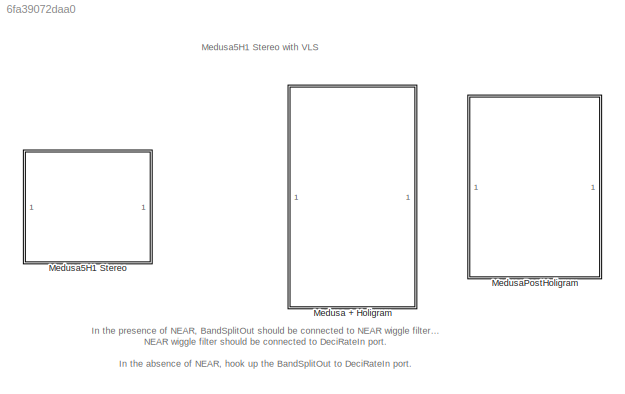
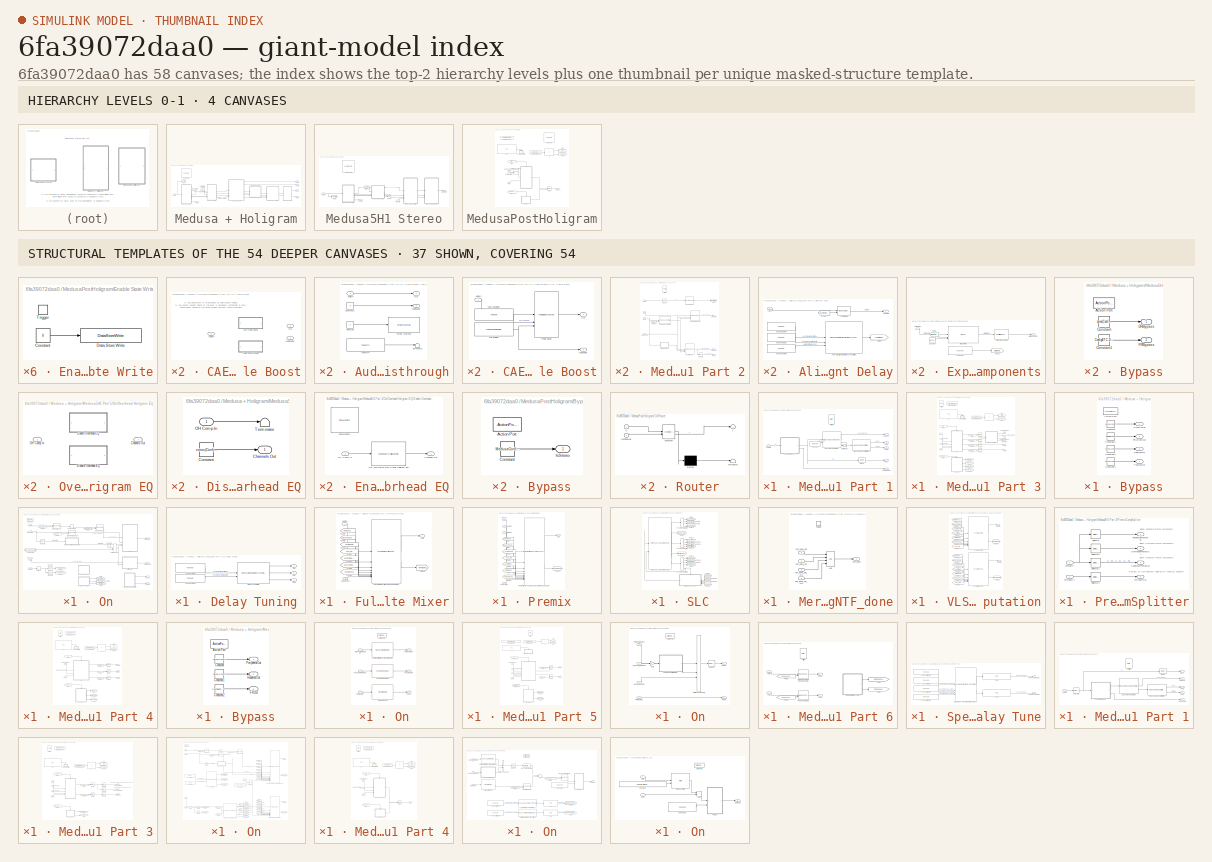
[diagram: thumbnail index - top-2 hierarchy levels (4 canvases) + 37 structural-template representatives of the remaining 54 canvases]
MODEL slx_6fa39072daa0
KIND library
CONFIG AbsTol = auto
CONFIG EnableMultiTasking = off
CONFIG FixedStep = auto
CONFIG MaxStep = auto
CONFIG MinStep = auto
CONFIG RelTol = 1e-3
CONFIG SampleTimeConstraint = Unconstrained
CONFIG SolverName = VariableStepAuto
CONFIG StartTime = 0.0
CONFIG StopTime = 10.0
BLOCK [SubSystem] Medusa + Holigram
  LibrarySourceBlock = medusa5h1_stereo/Medusa + Holigram
BLOCK [Inport] Medusa + Holigram/AudioIn
BLOCK [Outport] Medusa + Holigram/BandSplitOut
  Port = 7
BLOCK [Outport] Medusa + Holigram/D gains
BLOCK [Outport] Medusa + Holigram/DROut
  Port = 3
BLOCK [Inport] Medusa + Holigram/DeciRateIn
  Port = 3
BLOCK [Outport] Medusa + Holigram/FROut
  Port = 4
BLOCK [Inport] Medusa + Holigram/FadeIn
  OutDataTypeStr = single
  Port = 2
BLOCK [Reference] Medusa + Holigram/FeaturePath  REF=FeaturePath/FeaturePath
  SourceBlock = FeaturePath/FeaturePath
  SourceProductName = Bose Talaria
  SourceType = Talaria Feature Path
BLOCK [From] Medusa + Holigram/From
  GotoTag = AudioIn
BLOCK [Goto] Medusa + Holigram/Goto
  GotoTag = AudioIn
BLOCK [Outport] Medusa + Holigram/HFRef
  Port = 6
  VectorParamsAs1DForOutWhenUnconnected = off
BLOCK [Outport] Medusa + Holigram/LFRef
  Port = 5
  VectorParamsAs1DForOutWhenUnconnected = off
BLOCK [SubSystem] Medusa + Holigram/Medusa5H1 Part 1
  RTWSystemCode = Nonreusable function
  TreatAsAtomicUnit = on
BLOCK [Inport] Medusa + Holigram/Medusa5H1 Part 1/AudioIn
  NameLocation = top
BLOCK [Reference] Medusa + Holigram/Medusa5H1 Part 1/Bass Manager Stereo  REF=BassManager/MedusaBassManager
  SourceBlock = BassManager/MedusaBassManager
  SourceType = Bass Manager
BLOCK [SubSystem] Medusa + Holigram/Medusa5H1 Part 1/CAE Treble Boost
  Variant = on
BLOCK [SubSystem] Medusa + Holigram/Medusa5H1 Part 1/CAE Treble Boost/Audio Passthrough
  VariantControl = sys_defs.include_compressed_audio_enhancement == 0
BLOCK [Inport] Medusa + Holigram/Medusa5H1 Part 1/CAE Treble Boost/Audio Passthrough/AudioIn
BLOCK [Outport] Medusa + Holigram/Medusa5H1 Part 1/CAE Treble Boost/Audio Passthrough/CAEEnable
  Port = 2
BLOCK [Constant] Medusa + Holigram/Medusa5H1 Part 1/CAE Treble Boost/Audio Passthrough/Constant
  OutDataTypeStr = int32
  SampleTime = -1
  Value = 0
BLOCK [Constant] Medusa + Holigram/Medusa5H1 Part 1/CAE Treble Boost/Audio Passthrough/Constant3
  OutDataTypeStr = int32
  SampleTime = -1
  Value = 0
BLOCK [Outport] Medusa + Holigram/Medusa5H1 Part 1/CAE Treble Boost/Audio Passthrough/Out
BLOCK [Reference] Medusa + Holigram/Medusa5H1 Part 1/CAE Treble Boost/Audio Passthrough/Target StateVar  REF=StateVar/TargetStateVar
  SourceBlock = StateVar/TargetStateVar
  SourceProductName = Bose Talaria
  SourceType = Talaria Target State Variable
BLOCK [Terminator] Medusa + Holigram/Medusa5H1 Part 1/CAE Treble Boost/Audio Passthrough/Terminator
BLOCK [Reference] Medusa + Holigram/Medusa5H1 Part 1/CAE Treble Boost/Audio Passthrough/TuneTOP  REF=TuneVar/TuneTOP
  SourceBlock = TuneVar/TuneTOP
  SourceProductName = Bose Talaria
  SourceType = Talaria Trivial Tune TOP
BLOCK [Inport] Medusa + Holigram/Medusa5H1 Part 1/CAE Treble Boost/AudioIn
BLOCK [SubSystem] Medusa + Holigram/Medusa5H1 Part 1/CAE Treble Boost/CAE Treble Boost
  VariantControl = sys_defs.include_compressed_audio_enhancement == 1
BLOCK [Inport] Medusa + Holigram/Medusa5H1 Part 1/CAE Treble Boost/CAE Treble Boost/AudioIn
BLOCK [Reference] Medusa + Holigram/Medusa5H1 Part 1/CAE Treble Boost/CAE Treble Boost/CAE Enable  REF=MedusaCaeEnable/MedusaCaeEnable
  SourceBlock = MedusaCaeEnable/MedusaCaeEnable
BLOCK [Outport] Medusa + Holigram/Medusa5H1 Part 1/CAE Treble Boost/CAE Treble Boost/CAEEnable
  Port = 2
BLOCK [Outport] Medusa + Holigram/Medusa5H1 Part 1/CAE Treble Boost/CAE Treble Boost/Out
BLOCK [Reference] Medusa + Holigram/Medusa5H1 Part 1/CAE Treble Boost/CAE Treble Boost/Treble Boost  REF=TrebleBoost/TrebleBoostStereo
  SourceBlock = TrebleBoost/TrebleBoostStereo
BLOCK [Reference] Medusa + Holigram/Medusa5H1 Part 1/CAE Treble Boost/CAE Treble Boost/Tune Variable4  REF=TuneVar/TuneVar
  Description = General surround control parameter\nSTEREO_MODE = 0\nSURROUND_PASSTHRU_MODE = 1\nMEDUSA_2_CHANNEL_MODE = 2\nMEDUSA_5_1_MODE = 3
  SourceBlock = TuneVar/TuneVar
  SourceProductName = Bose Talaria
  SourceType = Talaria Tune Variable
BLOCK [Outport] Medusa + Holigram/Medusa5H1 Part 1/CAE Treble Boost/CAEEnable
  Port = 2
BLOCK [Outport] Medusa + Holigram/Medusa5H1 Part 1/CAE Treble Boost/Out
BLOCK [Outport] Medusa + Holigram/Medusa5H1 Part 1/CAEEnable
  Port = 4
BLOCK [Outport] Medusa + Holigram/Medusa5H1 Part 1/LRbass
  VectorParamsAs1DForOutWhenUnconnected = off
BLOCK [Outport] Medusa + Holigram/Medusa5H1 Part 1/LRbp
  Port = 2
  VectorParamsAs1DForOutWhenUnconnected = off
BLOCK [Outport] Medusa + Holigram/Medusa5H1 Part 1/LRhp
  Port = 3
  VectorParamsAs1DForOutWhenUnconnected = off
BLOCK [Reference] Medusa + Holigram/Medusa5H1 Part 1/Mean  REF=dspstat3/Mean
  SourceBlock = dspstat3/Mean
  SourceType = Mean
  UserDataPersistent = on
BLOCK [Reference] Medusa + Holigram/Medusa5H1 Part 1/Medusa Band Split Stereo  REF=MedusaBandSplit/Medusa Band Split Stereo
  SourceBlock = MedusaBandSplit/Medusa Band Split Stereo
  SourceType = Medusa Band Split Stereo
BLOCK [Outport] Medusa + Holigram/Medusa5H1 Part 1/Mono
  Port = 5
  VectorParamsAs1DForOutWhenUnconnected = off
BLOCK [Reference] Medusa + Holigram/Medusa5H1 Part 1/Partition  REF=FeaturePath/Partition
  SourceBlock = FeaturePath/Partition
  SourceProductName = Bose Talaria
  SourceType = Talaria Partition
BLOCK [Terminator] Medusa + Holigram/Medusa5H1 Part 1/Terminator
BLOCK [Reference] Medusa + Holigram/Medusa5H1 Part 1/TuneVar  REF=TuneVar/TuneVar
  Description = General surround control parameter\nSTEREO_MODE = 0\nSURROUND_PASSTHRU_MODE = 1\nMEDUSA_2_CHANNEL_MODE = 2\nMEDUSA_5_1_MODE = 3
  SourceBlock = TuneVar/TuneVar
  SourceProductName = Bose Talaria
  SourceType = Talaria Tune Variable
BLOCK [SubSystem] Medusa + Holigram/Medusa5H1 Part 2
  RTWSystemCode = Nonreusable function
  TreatAsAtomicUnit = on
BLOCK [SubSystem] Medusa + Holigram/Medusa5H1 Part 2/Alignment Delay
  FunctionWithSeparateData = on
  RTWSystemCode = Nonreusable function
  TreatAsAtomicUnit = on
BLOCK [From] Medusa + Holigram/Medusa5H1 Part 2/Alignment Delay/From7
  GotoTag = TrebleDelay
BLOCK [Reference] Medusa + Holigram/Medusa5H1 Part 2/Alignment Delay/Full-rate Alignment Delay Translation  REF=MedusaDelays/MedusaFullRateAlignmentDelayTranslation
  SourceBlock = MedusaDelays/MedusaFullRateAlignmentDelayTranslation
  SourceType = Alignment Delay Translation
BLOCK [Goto] Medusa + Holigram/Medusa5H1 Part 2/Alignment Delay/Goto9
  GotoTag = TrebleDelay
BLOCK [Inport] Medusa + Holigram/Medusa5H1 Part 2/Alignment Delay/LRhp
BLOCK [Outport] Medusa + Holigram/Medusa5H1 Part 2/Alignment Delay/LRtreble
BLOCK [Reference] Medusa + Holigram/Medusa5H1 Part 2/Alignment Delay/Treble Delay  REF=MedusaDelays/MedusaAlignmentDelay
  SourceBlock = MedusaDelays/MedusaAlignmentDelay
  SourceType = Fixed Alignment Delay
BLOCK [Reference] Medusa + Holigram/Medusa5H1 Part 2/Alignment Delay/Tune Variable1  REF=TuneVar/TuneVar
  SourceBlock = TuneVar/TuneVar
  SourceProductName = Bose Talaria
  SourceType = Talaria Tune Variable
BLOCK [Reference] Medusa + Holigram/Medusa5H1 Part 2/Alignment Delay/Tune Variable4  REF=TuneVar/TuneVar
  SourceBlock = TuneVar/TuneVar
  SourceProductName = Bose Talaria
  SourceType = Talaria Tune Variable
BLOCK [Reference] Medusa + Holigram/Medusa5H1 Part 2/Alignment Delay/Tune Variable5  REF=TuneVar/TuneVar
  SourceBlock = TuneVar/TuneVar
  SourceProductName = Bose Talaria
  SourceType = Talaria Tune Variable
BLOCK [Inport] Medusa + Holigram/Medusa5H1 Part 2/AudioIn
  OutDataTypeStr = single
BLOCK [Inport] Medusa + Holigram/Medusa5H1 Part 2/CAEEnable
  Port = 4
BLOCK [Outport] Medusa + Holigram/Medusa5H1 Part 2/DRComps
  VectorParamsAs1DForOutWhenUnconnected = off
BLOCK [Reference] Medusa + Holigram/Medusa5H1 Part 2/Decimated-Rate FDP  REF=MedusaFdp/MedusaFdp
  SourceBlock = MedusaFdp/MedusaFdp
  SourceType = MedusaFdp
BLOCK [Outport] Medusa + Holigram/Medusa5H1 Part 2/FRComps
  Port = 2
  VectorParamsAs1DForOutWhenUnconnected = off
BLOCK [From] Medusa + Holigram/Medusa5H1 Part 2/From1
  GotoTag = isStereo
BLOCK [Reference] Medusa + Holigram/Medusa5H1 Part 2/Full-Rate FDP  REF=MedusaFdp/MedusaFdp
  SourceBlock = MedusaFdp/MedusaFdp
  SourceType = MedusaFdp
BLOCK [Goto] Medusa + Holigram/Medusa5H1 Part 2/Goto7
  GotoTag = isStereo
BLOCK [Outport] Medusa + Holigram/Medusa5H1 Part 2/HFRef
  Port = 3
BLOCK [Inport] Medusa + Holigram/Medusa5H1 Part 2/LRbp
  Port = 2
BLOCK [Inport] Medusa + Holigram/Medusa5H1 Part 2/LRhp
  Port = 3
BLOCK [Reference] Medusa + Holigram/Medusa5H1 Part 2/Mono Detector  REF=MonoDetector/MedusaMonoDetector
  SourceBlock = MonoDetector/MedusaMonoDetector
  SourceType = Mono Detector
BLOCK [Reference] Medusa + Holigram/Medusa5H1 Part 2/Partition  REF=FeaturePath/Partition
  SourceBlock = FeaturePath/Partition
  SourceProductName = Bose Talaria
  SourceType = Talaria Partition
BLOCK [Reference] Medusa + Holigram/Medusa5H1 Part 2/SPUM Decay Estimate  REF=MedusaSPUMDecayEst/SPUM Decay Estimate
  SourceBlock = MedusaSPUMDecayEst/SPUM Decay Estimate
BLOCK [Selector] Medusa + Holigram/Medusa5H1 Part 2/Selector
  IndexOptions = Select all,Index vector (dialog)
  Indices = [1 3],[1,2]
  InputPortWidth = 3
  NumberOfDimensions = 2
  OutputSizes = 1,1
BLOCK [Selector] Medusa + Holigram/Medusa5H1 Part 2/Selector1
  IndexOptions = Select all,Index vector (dialog)
  Indices = [1 3],[1 2 3 5]
  InputPortWidth = 3
  NumberOfDimensions = 2
  OutputSizes = 1,1
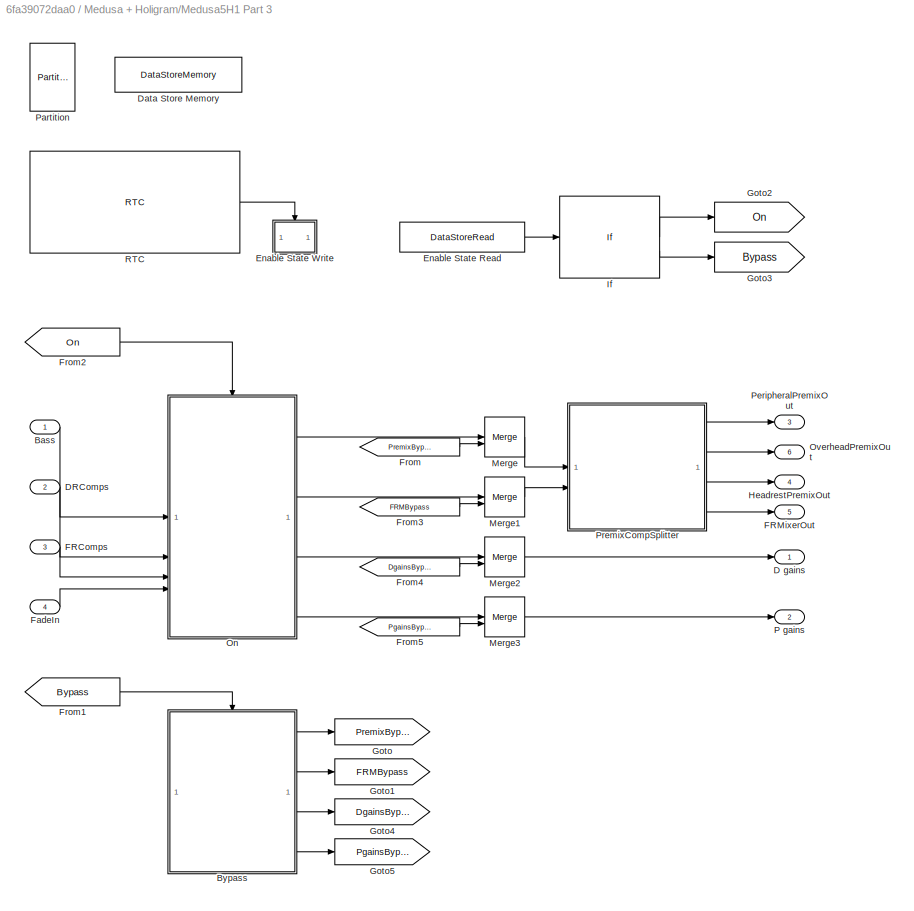
BLOCK [SubSystem] Medusa + Holigram/Medusa5H1 Part 3
  FunctionWithSeparateData = on
  RTWSystemCode = Nonreusable function
  TreatAsAtomicUnit = on
BLOCK [Inport] Medusa + Holigram/Medusa5H1 Part 3/Bass
BLOCK [SubSystem] Medusa + Holigram/Medusa5H1 Part 3/Bypass
BLOCK [ActionPort] Medusa + Holigram/Medusa5H1 Part 3/Bypass/Action Port
BLOCK [Constant] Medusa + Holigram/Medusa5H1 Part 3/Bypass/Constant
  OutDataTypeStr = single
  Value = zeros(config.HoligramEQConfig.frameSize, config.PremixConfig.NumPremixOut)
BLOCK [Constant] Medusa + Holigram/Medusa5H1 Part 3/Bypass/Constant1
  OutDataTypeStr = single
  Value = ConfigBTC.DefaultFullRateMixerOutput
BLOCK [Constant] Medusa + Holigram/Medusa5H1 Part 3/Bypass/Constant2
  OutDataTypeStr = single
  Value = zeros(config.numVLSGains, 1)
BLOCK [Constant] Medusa + Holigram/Medusa5H1 Part 3/Bypass/Constant3
  OutDataTypeStr = single
  Value = zeros(config.numVLSGains, 1)
BLOCK [Outport] Medusa + Holigram/Medusa5H1 Part 3/Bypass/DgainsOut
  Port = 3
  VectorParamsAs1DForOutWhenUnconnected = off
BLOCK [Outport] Medusa + Holigram/Medusa5H1 Part 3/Bypass/FRMixerOut
  Port = 2
  VectorParamsAs1DForOutWhenUnconnected = off
BLOCK [Outport] Medusa + Holigram/Medusa5H1 Part 3/Bypass/PgainsOut
  Port = 4
  VectorParamsAs1DForOutWhenUnconnected = off
BLOCK [Outport] Medusa + Holigram/Medusa5H1 Part 3/Bypass/PremixOut
  VectorParamsAs1DForOutWhenUnconnected = off
BLOCK [Outport] Medusa + Holigram/Medusa5H1 Part 3/D gains
BLOCK [Inport] Medusa + Holigram/Medusa5H1 Part 3/DRComps
  Port = 2
BLOCK [DataStoreMemory] Medusa + Holigram/Medusa5H1 Part 3/Data Store Memory
  DataStoreName = MedusaPostUpmixEnable
  InitialValue = 1
  OutDataTypeStr = uint32
  ReadBeforeWriteMsg = warning
  ShowAdditionalParam = off
  WriteAfterReadMsg = warning
  WriteAfterWriteMsg = warning
BLOCK [DataStoreRead] Medusa + Holigram/Medusa5H1 Part 3/Enable State Read
  DataStoreName = MedusaPostUpmixEnable
  IndexOptions = Index vector (dialog)
  Indices = 1
  OutputSizes = 1
BLOCK [SubSystem] Medusa + Holigram/Medusa5H1 Part 3/Enable State Write
BLOCK [Constant] Medusa + Holigram/Medusa5H1 Part 3/Enable State Write/Constant
  OutDataTypeStr = uint32
  Value = 0
BLOCK [DataStoreWrite] Medusa + Holigram/Medusa5H1 Part 3/Enable State Write/Data Store Write
  DataStoreName = MedusaPostUpmixEnable
  IndexOptions = Index vector (dialog)
  Indices = 1
  OutputSizes = 1
BLOCK [TriggerPort] Medusa + Holigram/Medusa5H1 Part 3/Enable State Write/Trigger
  PortDimensions = 1
  StatesWhenEnabling = held
  TriggerType = function-call
  VariantControl = Variant
BLOCK [Inport] Medusa + Holigram/Medusa5H1 Part 3/FRComps
  Port = 3
BLOCK [Outport] Medusa + Holigram/Medusa5H1 Part 3/FRMixerOut
  Port = 5
  VectorParamsAs1DForOutWhenUnconnected = off
BLOCK [Inport] Medusa + Holigram/Medusa5H1 Part 3/FadeIn
  Port = 4
BLOCK [From] Medusa + Holigram/Medusa5H1 Part 3/From
  GotoTag = PremixBypass
BLOCK [From] Medusa + Holigram/Medusa5H1 Part 3/From1
  GotoTag = Bypass
BLOCK [From] Medusa + Holigram/Medusa5H1 Part 3/From2
  GotoTag = On
BLOCK [From] Medusa + Holigram/Medusa5H1 Part 3/From3
  GotoTag = FRMBypass
BLOCK [From] Medusa + Holigram/Medusa5H1 Part 3/From4
  GotoTag = DgainsBypass
BLOCK [From] Medusa + Holigram/Medusa5H1 Part 3/From5
  GotoTag = PgainsBypass
BLOCK [Goto] Medusa + Holigram/Medusa5H1 Part 3/Goto
  GotoTag = PremixBypass
BLOCK [Goto] Medusa + Holigram/Medusa5H1 Part 3/Goto1
  GotoTag = FRMBypass
BLOCK [Goto] Medusa + Holigram/Medusa5H1 Part 3/Goto2
  GotoTag = On
BLOCK [Goto] Medusa + Holigram/Medusa5H1 Part 3/Goto3
  GotoTag = Bypass
BLOCK [Goto] Medusa + Holigram/Medusa5H1 Part 3/Goto4
  GotoTag = DgainsBypass
BLOCK [Goto] Medusa + Holigram/Medusa5H1 Part 3/Goto5
  GotoTag = PgainsBypass
BLOCK [Outport] Medusa + Holigram/Medusa5H1 Part 3/HeadrestPremixOut
  Port = 4
  VectorParamsAs1DForOutWhenUnconnected = off
BLOCK [If] Medusa + Holigram/Medusa5H1 Part 3/If
BLOCK [Merge] Medusa + Holigram/Medusa5H1 Part 3/Merge
  InitialOutput = zeros(config.HoligramEQConfig.frameSize, config.PremixConfig.NumPremixOut)
BLOCK [Merge] Medusa + Holigram/Medusa5H1 Part 3/Merge1
  InitialOutput = ConfigBTC.DefaultFullRateMixerOutput
BLOCK [Merge] Medusa + Holigram/Medusa5H1 Part 3/Merge2
  InitialOutput = zeros(config.numVLSGains, 1)
BLOCK [Merge] Medusa + Holigram/Medusa5H1 Part 3/Merge3
  InitialOutput = zeros(config.numVLSGains, 1)
BLOCK [SubSystem] Medusa + Holigram/Medusa5H1 Part 3/On
BLOCK [ActionPort] Medusa + Holigram/Medusa5H1 Part 3/On/Action Port
BLOCK [Reference] Medusa + Holigram/Medusa5H1 Part 3/On/Alignment Delay DR  REF=MedusaDelays/MedusaAlignmentDelay
  SourceBlock = MedusaDelays/MedusaAlignmentDelay
  SourceType = Fixed Alignment Delay
BLOCK [Inport] Medusa + Holigram/Medusa5H1 Part 3/On/Bass
  OutDataTypeStr = single
BLOCK [Reference] Medusa + Holigram/Medusa5H1 Part 3/On/Bass Delay DR  REF=MedusaDelays/MedusaAlignmentDelay
  SourceBlock = MedusaDelays/MedusaAlignmentDelay
  SourceType = Fixed Alignment Delay
BLOCK [Reference] Medusa + Holigram/Medusa5H1 Part 3/On/Bass Delay FR  REF=MedusaDelays/MedusaAlignmentDelay
  SourceBlock = MedusaDelays/MedusaAlignmentDelay
  SourceType = Fixed Alignment Delay
BLOCK [Reference] Medusa + Holigram/Medusa5H1 Part 3/On/CAE Enable  REF=MedusaCaeEnable/MedusaCaeEnable
  SourceBlock = MedusaCaeEnable/MedusaCaeEnable
BLOCK [Constant] Medusa + Holigram/Medusa5H1 Part 3/On/Constant3
  OutDataTypeStr = int32
  SampleTime = -1
  Value = 0
BLOCK [Outport] Medusa + Holigram/Medusa5H1 Part 3/On/D gains
  Port = 3
BLOCK [Inport] Medusa + Holigram/Medusa5H1 Part 3/On/DRComps
  OutDataTypeStr = single
  Port = 2
BLOCK [SubSystem] Medusa + Holigram/Medusa5H1 Part 3/On/Delay Tuning
BLOCK [Reference] Medusa + Holigram/Medusa5H1 Part 3/On/Delay Tuning/Delay Translation  REF=MedusaDelays/MedusaAlignmentDelayTranslation
  SourceBlock = MedusaDelays/MedusaAlignmentDelayTranslation
  SourceType = Alignment Delay Translation
BLOCK [Outport] Medusa + Holigram/Medusa5H1 Part 3/On/Delay Tuning/Out1
BLOCK [Outport] Medusa + Holigram/Medusa5H1 Part 3/On/Delay Tuning/Out2
  Port = 2
BLOCK [Outport] Medusa + Holigram/Medusa5H1 Part 3/On/Delay Tuning/Out3
  Port = 3
BLOCK [Reference] Medusa + Holigram/Medusa5H1 Part 3/On/Delay Tuning/Tune Variable  REF=TuneVar/TuneVar
  SourceBlock = TuneVar/TuneVar
  SourceProductName = Bose Talaria
  SourceType = Talaria Tune Variable
BLOCK [Reference] Medusa + Holigram/Medusa5H1 Part 3/On/Delay Tuning/Tune Variable1  REF=TuneVar/TuneVar
  SourceBlock = TuneVar/TuneVar
  SourceProductName = Bose Talaria
  SourceType = Talaria Tune Variable
BLOCK [Delay] Medusa + Holigram/Medusa5H1 Part 3/On/Delay6
  DelayLength = 1
  InputPortMap = u0
BLOCK [DownSample] Medusa + Holigram/Medusa5H1 Part 3/On/Downsample
  N = 4
BLOCK [SubSystem] Medusa + Holigram/Medusa5H1 Part 3/On/Expand Tail Components
  FunctionWithSeparateData = on
  RTWFileName = MedusaExpandTailComps
  RTWFileNameOpts = User specified
  RTWSystemCode = Nonreusable function
  TreatAsAtomicUnit = on
BLOCK [Constant] Medusa + Holigram/Medusa5H1 Part 3/On/Expand Tail Components/Constant
  OutDataTypeStr = single
  SampleTime = -1
  Value = [0 1 2 3]
BLOCK [From] Medusa + Holigram/Medusa5H1 Part 3/On/Expand Tail Components/From6
  GotoTag = wiggleFilter
BLOCK [Goto] Medusa + Holigram/Medusa5H1 Part 3/On/Expand Tail Components/Goto10
  GotoTag = wiggleFilter
BLOCK [Reference] Medusa + Holigram/Medusa5H1 Part 3/On/Expand Tail Components/Tail Component EQ  REF=PooliirLib/PooliirwithNonTrivialTranslations
  SourceBlock = PooliirLib/PooliirwithNonTrivialTranslations
  SourceType = Bose Pool IIR
BLOCK [Inport] Medusa + Holigram/Medusa5H1 Part 3/On/Expand Tail Components/Tail Comps
BLOCK [Reference] Medusa + Holigram/Medusa5H1 Part 3/On/Expand Tail Components/TuneTOP  REF=TuneVar/TuneTOP
  SourceBlock = TuneVar/TuneTOP
  SourceProductName = Bose Talaria
  SourceType = Talaria Trivial Tune TOP
BLOCK [Outport] Medusa + Holigram/Medusa5H1 Part 3/On/Expand Tail Components/Wiggle Comps
  VectorParamsAs1DForOutWhenUnconnected = off
BLOCK [Reference] Medusa + Holigram/Medusa5H1 Part 3/On/Expand Tail Components/Wiggle Filters  REF=FirEven/FirEven
  SourceBlock = FirEven/FirEven
  SourceProductName = Bose Blocklib
BLOCK [Inport] Medusa + Holigram/Medusa5H1 Part 3/On/FRComps
  OutDataTypeStr = single
  Port = 3
BLOCK [Outport] Medusa + Holigram/Medusa5H1 Part 3/On/FRMixerOut
  Port = 2
  VectorParamsAs1DForOutWhenUnconnected = off
BLOCK [Inport] Medusa + Holigram/Medusa5H1 Part 3/On/FadeIn
  OutDataTypeStr = single
  Port = 4
BLOCK [From] Medusa + Holigram/Medusa5H1 Part 3/On/From1
  GotoTag = BassDelayDec
BLOCK [From] Medusa + Holigram/Medusa5H1 Part 3/On/From2
  GotoTag = BassDelayFull
BLOCK [From] Medusa + Holigram/Medusa5H1 Part 3/On/From6
  GotoTag = AlignmentDelay
BLOCK [SubSystem] Medusa + Holigram/Medusa5H1 Part 3/On/Full-rate Mixer
BLOCK [Inport] Medusa + Holigram/Medusa5H1 Part 3/On/Full-rate Mixer/CAE Control
  Port = 2
BLOCK [From] Medusa + Holigram/Medusa5H1 Part 3/On/Full-rate Mixer/From1
  GotoTag = SLC_On
  TagVisibility = global
BLOCK [From] Medusa + Holigram/Medusa5H1 Part 3/On/Full-rate Mixer/From10
  GotoTag = SLCTrigger2
  TagVisibility = global
BLOCK [From] Medusa + Holigram/Medusa5H1 Part 3/On/Full-rate Mixer/From12
  GotoTag = SLCReset2
  TagVisibility = global
BLOCK [From] Medusa + Holigram/Medusa5H1 Part 3/On/Full-rate Mixer/From16
  GotoTag = NTFCheck2
  TagVisibility = global
BLOCK [From] Medusa + Holigram/Medusa5H1 Part 3/On/Full-rate Mixer/From4
  GotoTag = FrontFadeGain
  TagVisibility = global
BLOCK [From] Medusa + Holigram/Medusa5H1 Part 3/On/Full-rate Mixer/From5
  GotoTag = BackFadeGain
  TagVisibility = global
BLOCK [From] Medusa + Holigram/Medusa5H1 Part 3/On/Full-rate Mixer/From8
  GotoTag = SurroundInfo
  TagVisibility = global
BLOCK [Reference] Medusa + Holigram/Medusa5H1 Part 3/On/Full-rate Mixer/Full-Rate Mixer with CAE & Fade Ramper  REF=MedusaFullRateMixer/Full-Rate Mixer with CAE & Fade Ramper
  SourceBlock = MedusaFullRateMixer/Full-Rate Mixer with CAE & Fade Ramper
BLOCK [Goto] Medusa + Holigram/Medusa5H1 Part 3/On/Full-rate Mixer/Goto18
  GotoTag = NTFDone2
  TagVisibility = global
BLOCK [Outport] Medusa + Holigram/Medusa5H1 Part 3/On/Full-rate Mixer/Out1
BLOCK [Inport] Medusa + Holigram/Medusa5H1 Part 3/On/Full-rate Mixer/Upmix In
BLOCK [Goto] Medusa + Holigram/Medusa5H1 Part 3/On/Goto
  GotoTag = BassDelayDec
BLOCK [Goto] Medusa + Holigram/Medusa5H1 Part 3/On/Goto1
  GotoTag = FrontFadeGain
  TagVisibility = global
BLOCK [Goto] Medusa + Holigram/Medusa5H1 Part 3/On/Goto2
  GotoTag = BackFadeGain
  TagVisibility = global
BLOCK [Goto] Medusa + Holigram/Medusa5H1 Part 3/On/Goto3
  GotoTag = BassDelayFull
BLOCK [Goto] Medusa + Holigram/Medusa5H1 Part 3/On/Goto4
  GotoTag = AlignmentDelay
BLOCK [Outport] Medusa + Holigram/Medusa5H1 Part 3/On/P gains
  Port = 4
BLOCK [SubSystem] Medusa + Holigram/Medusa5H1 Part 3/On/Premix
BLOCK [Inport] Medusa + Holigram/Medusa5H1 Part 3/On/Premix/Bass In
BLOCK [Inport] Medusa + Holigram/Medusa5H1 Part 3/On/Premix/CAE Control
  Port = 4
BLOCK [From] Medusa + Holigram/Medusa5H1 Part 3/On/Premix/From
  GotoTag = FrontFadeGain
  TagVisibility = global
BLOCK [From] Medusa + Holigram/Medusa5H1 Part 3/On/Premix/From1
  GotoTag = SLC_On
  TagVisibility = global
BLOCK [From] Medusa + Holigram/Medusa5H1 Part 3/On/Premix/From11
  GotoTag = SLCReset1
  TagVisibility = global
BLOCK [From] Medusa + Holigram/Medusa5H1 Part 3/On/Premix/From15
  GotoTag = NTFCheck1
  TagVisibility = global
BLOCK [From] Medusa + Holigram/Medusa5H1 Part 3/On/Premix/From3
  GotoTag = BackFadeGain
  TagVisibility = global
BLOCK [From] Medusa + Holigram/Medusa5H1 Part 3/On/Premix/From7
  GotoTag = SurroundInfo
  TagVisibility = global
BLOCK [From] Medusa + Holigram/Medusa5H1 Part 3/On/Premix/From9
  GotoTag = SLCTrigger1
  TagVisibility = global
BLOCK [Goto] Medusa + Holigram/Medusa5H1 Part 3/On/Premix/Goto19
  GotoTag = NTFDone1
  TagVisibility = global
BLOCK [Outport] Medusa + Holigram/Medusa5H1 Part 3/On/Premix/Out1
BLOCK [Reference] Medusa + Holigram/Medusa5H1 Part 3/On/Premix/Premix with Mono-Surround & CAE with Fade Ramper  REF=MedusaPremix/PremixWithMonoSurroundAndCaeWithFadeRamper
  LibrarySourceBlock = MedusaPremix/Premix with Mono-Surround & CAE with Fade Ramper
  SourceBlock = MedusaPremix/PremixWithMonoSurroundAndCaeWithFadeRamper
  SourceType = Medusa Premix 5H
BLOCK [Inport] Medusa + Holigram/Medusa5H1 Part 3/On/Premix/Upmix In
  Port = 2
BLOCK [Inport] Medusa + Holigram/Medusa5H1 Part 3/On/Premix/Wiggle In
  Port = 3
BLOCK [Outport] Medusa + Holigram/Medusa5H1 Part 3/On/PremixOut
  VectorParamsAs1DForOutWhenUnconnected = off
BLOCK [SubSystem] Medusa + Holigram/Medusa5H1 Part 3/On/SLC
BLOCK [From] Medusa + Holigram/Medusa5H1 Part 3/On/SLC/From27
  GotoTag = NTFDone1
  TagVisibility = global
BLOCK [From] Medusa + Holigram/Medusa5H1 Part 3/On/SLC/From28
  GotoTag = NTFDone2
  TagVisibility = global
BLOCK [From] Medusa + Holigram/Medusa5H1 Part 3/On/SLC/From29
  GotoTag = NTFDone3
  TagVisibility = global
BLOCK [From] Medusa + Holigram/Medusa5H1 Part 3/On/SLC/From30
  GotoTag = NTFDone4
  TagVisibility = global
BLOCK [FunctionCallSplit] Medusa + Holigram/Medusa5H1 Part 3/On/SLC/Function-Call Split1
  IconShape = distinctive
  NumOutputPorts = 6
  OutputPortLayout = default
BLOCK [FunctionCallSplit] Medusa + Holigram/Medusa5H1 Part 3/On/SLC/Function-Call Split4
  IconShape = distinctive
  NumOutputPorts = 4
  OutputPortLayout = default
BLOCK [FunctionCallSplit] Medusa + Holigram/Medusa5H1 Part 3/On/SLC/Function-Call Split5
  IconShape = distinctive
  NumOutputPorts = 4
  OutputPortLayout = default
BLOCK [Goto] Medusa + Holigram/Medusa5H1 Part 3/On/SLC/Goto1
  GotoTag = SLC_On
  TagVisibility = global
BLOCK [Goto] Medusa + Holigram/Medusa5H1 Part 3/On/SLC/Goto10
  GotoTag = SLCReset4
  TagVisibility = global
BLOCK [Goto] Medusa + Holigram/Medusa5H1 Part 3/On/SLC/Goto11
  GotoTag = SLCTrigger4
  TagVisibility = global
BLOCK [Goto] Medusa + Holigram/Medusa5H1 Part 3/On/SLC/Goto12
  GotoTag = SLCTrigger1
  TagVisibility = global
BLOCK [Goto] Medusa + Holigram/Medusa5H1 Part 3/On/SLC/Goto13
  GotoTag = SLCTrigger2
  TagVisibility = global
BLOCK [Goto] Medusa + Holigram/Medusa5H1 Part 3/On/SLC/Goto14
  GotoTag = SLCTrigger3
  TagVisibility = global
BLOCK [Goto] Medusa + Holigram/Medusa5H1 Part 3/On/SLC/Goto15
  GotoTag = NTFCheck1
  TagVisibility = global
BLOCK [Goto] Medusa + Holigram/Medusa5H1 Part 3/On/SLC/Goto16
  GotoTag = NTFCheck2
  TagVisibility = global
BLOCK [Goto] Medusa + Holigram/Medusa5H1 Part 3/On/SLC/Goto17
  GotoTag = NTFCheck3
  TagVisibility = global
BLOCK [Goto] Medusa + Holigram/Medusa5H1 Part 3/On/SLC/Goto5
  GotoTag = SLCReset1
  TagVisibility = global
BLOCK [Goto] Medusa + Holigram/Medusa5H1 Part 3/On/SLC/Goto6
  GotoTag = SLCReset2
  TagVisibility = global
BLOCK [Goto] Medusa + Holigram/Medusa5H1 Part 3/On/SLC/Goto7
  GotoTag = SurroundInfo
  TagVisibility = global
BLOCK [Goto] Medusa + Holigram/Medusa5H1 Part 3/On/SLC/Goto8
  GotoTag = NTFCheck4
  TagVisibility = global
BLOCK [Goto] Medusa + Holigram/Medusa5H1 Part 3/On/SLC/Goto9
  GotoTag = SLCReset3
  TagVisibility = global
BLOCK [SubSystem] Medusa + Holigram/Medusa5H1 Part 3/On/SLC/Merge NTF_done
BLOCK [Logic] Medusa + Holigram/Medusa5H1 Part 3/On/SLC/Merge NTF_done/AND
  AllPortsSameDT = off
  IconShape = distinctive
  Inputs = 4
  OutDataTypeStr = boolean
BLOCK [Outport] Medusa + Holigram/Medusa5H1 Part 3/On/SLC/Merge NTF_done/NTF_done
  VectorParamsAs1DForOutWhenUnconnected = off
BLOCK [Inport] Medusa + Holigram/Medusa5H1 Part 3/On/SLC/Merge NTF_done/NTF_done_DR
BLOCK [Inport] Medusa + Holigram/Medusa5H1 Part 3/On/SLC/Merge NTF_done/NTF_done_DR_VLS
  Port = 3
BLOCK [Inport] Medusa + Holigram/Medusa5H1 Part 3/On/SLC/Merge NTF_done/NTF_done_FR
  Port = 2
BLOCK [Inport] Medusa + Holigram/Medusa5H1 Part 3/On/SLC/Merge NTF_done/NTF_done_FR_VLS
  Port = 4
BLOCK [TriggerPort] Medusa + Holigram/Medusa5H1 Part 3/On/SLC/Merge NTF_done/Trigger
  PortDimensions = 1
  StatesWhenEnabling = held
  TriggerType = function-call
  VariantControl = Variant
BLOCK [Reference] Medusa + Holigram/Medusa5H1 Part 3/On/SLC/Surround Level Control Generic  REF=MedusaSurroundLevelControl/Surround Level Control Generic
  SourceBlock = MedusaSurroundLevelControl/Surround Level Control Generic
BLOCK [Selector] Medusa + Holigram/Medusa5H1 Part 3/On/Selector
  IndexOptions = Index vector (dialog),Index vector (dialog)
  Indices = 1,1
  InputPortWidth = 2
  NumberOfDimensions = 2
  OutputSizes = 1,1
BLOCK [Selector] Medusa + Holigram/Medusa5H1 Part 3/On/Selector1
  IndexOptions = Select all,Index vector (dialog)
  Indices = [1 3],[6 8 6 8]
  InputPortWidth = 3
  NumberOfDimensions = 2
  OutputSizes = 1,1
BLOCK [Selector] Medusa + Holigram/Medusa5H1 Part 3/On/Selector2
  IndexOptions = Index vector (dialog),Index vector (dialog)
  Indices = 1,2
  InputPortWidth = 2
  NumberOfDimensions = 2
  OutputSizes = 1,1
BLOCK [SubSystem] Medusa + Holigram/Medusa5H1 Part 3/On/VLS Gains Computation
BLOCK [Outport] Medusa + Holigram/Medusa5H1 Part 3/On/VLS Gains Computation/D gains
BLOCK [From] Medusa + Holigram/Medusa5H1 Part 3/On/VLS Gains Computation/From1
  GotoTag = SLC_On
  TagVisibility = global
BLOCK [From] Medusa + Holigram/Medusa5H1 Part 3/On/VLS Gains Computation/From13
  GotoTag = FrontFadeGain
  TagVisibility = global
BLOCK [From] Medusa + Holigram/Medusa5H1 Part 3/On/VLS Gains Computation/From14
  GotoTag = BackFadeGain
  TagVisibility = global
BLOCK [From] Medusa + Holigram/Medusa5H1 Part 3/On/VLS Gains Computation/From17
  GotoTag = SLCReset3
  TagVisibility = global
BLOCK [From] Medusa + Holigram/Medusa5H1 Part 3/On/VLS Gains Computation/From18
  GotoTag = SLCReset4
  TagVisibility = global
BLOCK [From] Medusa + Holigram/Medusa5H1 Part 3/On/VLS Gains Computation/From19
  GotoTag = FrontFadeGain
  TagVisibility = global
BLOCK [From] Medusa + Holigram/Medusa5H1 Part 3/On/VLS Gains Computation/From2
  GotoTag = SLC_On
  TagVisibility = global
BLOCK [From] Medusa + Holigram/Medusa5H1 Part 3/On/VLS Gains Computation/From20
  GotoTag = BackFadeGain
  TagVisibility = global
BLOCK [From] Medusa + Holigram/Medusa5H1 Part 3/On/VLS Gains Computation/From21
  GotoTag = SLCTrigger3
  TagVisibility = global
BLOCK [From] Medusa + Holigram/Medusa5H1 Part 3/On/VLS Gains Computation/From22
  GotoTag = NTFCheck3
  TagVisibility = global
BLOCK [From] Medusa + Holigram/Medusa5H1 Part 3/On/VLS Gains Computation/From23
  GotoTag = SurroundInfo
  TagVisibility = global
BLOCK [From] Medusa + Holigram/Medusa5H1 Part 3/On/VLS Gains Computation/From24
  GotoTag = SLCTrigger4
  TagVisibility = global
BLOCK [From] Medusa + Holigram/Medusa5H1 Part 3/On/VLS Gains Computation/From25
  GotoTag = NTFCheck4
  TagVisibility = global
BLOCK [From] Medusa + Holigram/Medusa5H1 Part 3/On/VLS Gains Computation/From26
  GotoTag = SurroundInfo
  TagVisibility = global
BLOCK [Goto] Medusa + Holigram/Medusa5H1 Part 3/On/VLS Gains Computation/Goto20
  GotoTag = NTFDone3
  TagVisibility = global
BLOCK [Goto] Medusa + Holigram/Medusa5H1 Part 3/On/VLS Gains Computation/Goto21
  GotoTag = NTFDone4
  TagVisibility = global
BLOCK [Outport] Medusa + Holigram/Medusa5H1 Part 3/On/VLS Gains Computation/P gains
  Port = 2
BLOCK [Reference] Medusa + Holigram/Medusa5H1 Part 3/On/VLS Gains Computation/VLS Gains Drv  REF=VLSGains/VLS Gains Drv
  SourceBlock = VLSGains/VLS Gains Drv
  SourceType = VLS Gains
BLOCK [Reference] Medusa + Holigram/Medusa5H1 Part 3/On/VLS Gains Computation/VLS Gains Pax  REF=VLSGains/VLS Gains Pax
  SourceBlock = VLSGains/VLS Gains Pax
  SourceType = VLS Gains
BLOCK [VariantSource] Medusa + Holigram/Medusa5H1 Part 3/On/Variant Source
BLOCK [Outport] Medusa + Holigram/Medusa5H1 Part 3/OverheadPremixOut
  Port = 6
  VectorParamsAs1DForOutWhenUnconnected = off
BLOCK [Outport] Medusa + Holigram/Medusa5H1 Part 3/P gains
  Port = 2
BLOCK [Reference] Medusa + Holigram/Medusa5H1 Part 3/Partition  REF=FeaturePath/Partition
  SourceBlock = FeaturePath/Partition
  SourceProductName = Bose Talaria
  SourceType = Talaria Partition
BLOCK [Outport] Medusa + Holigram/Medusa5H1 Part 3/PeripheralPremixOut
  Port = 3
  VectorParamsAs1DForOutWhenUnconnected = off
BLOCK [SubSystem] Medusa + Holigram/Medusa5H1 Part 3/PremixCompSplitter
BLOCK [Inport] Medusa + Holigram/Medusa5H1 Part 3/PremixCompSplitter/FRMixerIn
  Port = 2
BLOCK [Outport] Medusa + Holigram/Medusa5H1 Part 3/PremixCompSplitter/FRMixerOut
  Port = 4
BLOCK [Outport] Medusa + Holigram/Medusa5H1 Part 3/PremixCompSplitter/HeadrestPremixOut
  Port = 3
BLOCK [Outport] Medusa + Holigram/Medusa5H1 Part 3/PremixCompSplitter/OverheadPremixOut
  Port = 2
BLOCK [Outport] Medusa + Holigram/Medusa5H1 Part 3/PremixCompSplitter/PeripheralPremixOut
BLOCK [Inport] Medusa + Holigram/Medusa5H1 Part 3/PremixCompSplitter/PremixIn
BLOCK [Selector] Medusa + Holigram/Medusa5H1 Part 3/PremixCompSplitter/Selector
  IndexOptions = Select all,Index vector (dialog)
  Indices = [1 3],config.PeripheralIdx
  InputPortWidth = 3
  NumberOfDimensions = 2
  OutputSizes = 1,1
BLOCK [Selector] Medusa + Holigram/Medusa5H1 Part 3/PremixCompSplitter/Selector1
  IndexOptions = Select all,Index vector (dialog)
  Indices = [1 3],config.HeadrestIdx
  InputPortWidth = 3
  NumberOfDimensions = 2
  OutputSizes = 1,1
BLOCK [Selector] Medusa + Holigram/Medusa5H1 Part 3/PremixCompSplitter/Selector2
  IndexOptions = Select all,Index vector (dialog)
  Indices = [1 3],config.OverheadIdx
  InputPortWidth = 3
  NumberOfDimensions = 2
  OutputSizes = 1,1
BLOCK [Selector] Medusa + Holigram/Medusa5H1 Part 3/PremixCompSplitter/Selector4
  IndexOptions = Select all,Index vector (dialog)
  Indices = [1 3],config.FRMOutputIdx
  InputPortWidth = 3
  NumberOfDimensions = 2
  OutputSizes = 1,1
BLOCK [Reference] Medusa + Holigram/Medusa5H1 Part 3/RTC  REF=RTC/RTC
  SourceBlock = RTC/RTC
  SourceProductName = Bose Talaria
  SourceType = Talaria RTC Receive
BLOCK [SubSystem] Medusa + Holigram/Medusa5H1 Part 4
  FunctionWithSeparateData = on
  RTWFcnName = MedusaHoligram
  RTWFileName = MedusaHoligram
  RTWSystemCode = Nonreusable function
  TreatAsAtomicUnit = on
BLOCK [SubSystem] Medusa + Holigram/Medusa5H1 Part 4/Bypass
BLOCK [ActionPort] Medusa + Holigram/Medusa5H1 Part 4/Bypass/Action Port
BLOCK [Constant] Medusa + Holigram/Medusa5H1 Part 4/Bypass/Constant
  OutDataTypeStr = single
  Value = zeros(ConfigBTC.DeciRateFrameSize, ConfigBTC.NumPeripheralChannels)
BLOCK [Constant] Medusa + Holigram/Medusa5H1 Part 4/Bypass/Constant1
  OutDataTypeStr = single
  Value = zeros(ConfigBTC.DeciRateFrameSize, 2*ConfigBTC.NumHeadrestComps)
BLOCK [Constant] Medusa + Holigram/Medusa5H1 Part 4/Bypass/Constant2
  OutDataTypeStr = single
  Value = ConfigBTC.DefaultFullRateMixerOutput
BLOCK [Outport] Medusa + Holigram/Medusa5H1 Part 4/Bypass/FROut
  Port = 3
  VectorParamsAs1DForOutWhenUnconnected = off
BLOCK [Outport] Medusa + Holigram/Medusa5H1 Part 4/Bypass/HeadrestOut
  Port = 2
  VectorParamsAs1DForOutWhenUnconnected = off
BLOCK [Outport] Medusa + Holigram/Medusa5H1 Part 4/Bypass/PeripheralOut
  VectorParamsAs1DForOutWhenUnconnected = off
BLOCK [DataStoreMemory] Medusa + Holigram/Medusa5H1 Part 4/Data Store Memory
  DataStoreName = MedusaHoligramEnable
  InitialValue = 1
  OutDataTypeStr = uint32
  ReadBeforeWriteMsg = warning
  ShowAdditionalParam = off
  WriteAfterReadMsg = warning
  WriteAfterWriteMsg = warning
BLOCK [DataStoreRead] Medusa + Holigram/Medusa5H1 Part 4/Enable State Read
  DataStoreName = MedusaHoligramEnable
  IndexOptions = Index vector (dialog)
  Indices = 1
  OutputSizes = 1
BLOCK [SubSystem] Medusa + Holigram/Medusa5H1 Part 4/Enable State Write
BLOCK [Constant] Medusa + Holigram/Medusa5H1 Part 4/Enable State Write/Constant
  OutDataTypeStr = uint32
  Value = 0
BLOCK [DataStoreWrite] Medusa + Holigram/Medusa5H1 Part 4/Enable State Write/Data Store Write
  DataStoreName = MedusaHoligramEnable
  IndexOptions = Index vector (dialog)
  Indices = 1
  OutputSizes = 1
BLOCK [TriggerPort] Medusa + Holigram/Medusa5H1 Part 4/Enable State Write/Trigger
  PortDimensions = 1
  StatesWhenEnabling = held
  TriggerType = function-call
  VariantControl = Variant
BLOCK [Outport] Medusa + Holigram/Medusa5H1 Part 4/FROut
  Port = 3
  VectorParamsAs1DForOutWhenUnconnected = off
BLOCK [Inport] Medusa + Holigram/Medusa5H1 Part 4/FRSpkr
  Port = 3
BLOCK [From] Medusa + Holigram/Medusa5H1 Part 4/From
  GotoTag = PeriphBypass
BLOCK [From] Medusa + Holigram/Medusa5H1 Part 4/From1
  GotoTag = Bypass
BLOCK [From] Medusa + Holigram/Medusa5H1 Part 4/From2
  GotoTag = On
BLOCK [From] Medusa + Holigram/Medusa5H1 Part 4/From3
  GotoTag = HRBypass
BLOCK [From] Medusa + Holigram/Medusa5H1 Part 4/From4
  GotoTag = FRBypass
BLOCK [Goto] Medusa + Holigram/Medusa5H1 Part 4/Goto
  GotoTag = PeriphBypass
BLOCK [Goto] Medusa + Holigram/Medusa5H1 Part 4/Goto1
  GotoTag = HRBypass
BLOCK [Goto] Medusa + Holigram/Medusa5H1 Part 4/Goto2
  GotoTag = On
BLOCK [Goto] Medusa + Holigram/Medusa5H1 Part 4/Goto3
  GotoTag = Bypass
BLOCK [Goto] Medusa + Holigram/Medusa5H1 Part 4/Goto4
  GotoTag = FRBypass
BLOCK [Outport] Medusa + Holigram/Medusa5H1 Part 4/HROut
  Port = 2
  VectorParamsAs1DForOutWhenUnconnected = off
BLOCK [Inport] Medusa + Holigram/Medusa5H1 Part 4/HeadrestComps
  Port = 2
BLOCK [If] Medusa + Holigram/Medusa5H1 Part 4/If
BLOCK [Merge] Medusa + Holigram/Medusa5H1 Part 4/Merge
  InitialOutput = zeros(ConfigBTC.DeciRateFrameSize, ConfigBTC.NumPeripheralChannels)
BLOCK [Merge] Medusa + Holigram/Medusa5H1 Part 4/Merge1
  InitialOutput = zeros(ConfigBTC.DeciRateFrameSize, 2*ConfigBTC.NumHeadrestComps)
BLOCK [Merge] Medusa + Holigram/Medusa5H1 Part 4/Merge2
  InitialOutput = ConfigBTC.DefaultFullRateMixerOutput
BLOCK [SubSystem] Medusa + Holigram/Medusa5H1 Part 4/On
BLOCK [ActionPort] Medusa + Holigram/Medusa5H1 Part 4/On/Action Port
BLOCK [Reference] Medusa + Holigram/Medusa5H1 Part 4/On/DR Mix Matrix with Hybrid Holigram EQ  REF=MedusaDrHoligramEq/MedusaDrHoligramEq
  SourceBlock = MedusaDrHoligramEq/MedusaDrHoligramEq
BLOCK [Reference] Medusa + Holigram/Medusa5H1 Part 4/On/FR IIR Holigram EQ  REF=MedusaFRHoligramEQ/FR Holigram EQ
  SourceBlock = MedusaFRHoligramEQ/FR Holigram EQ
BLOCK [Inport] Medusa + Holigram/Medusa5H1 Part 4/On/FRMixerOut
  OutDataTypeStr = single
  Port = 3
BLOCK [Outport] Medusa + Holigram/Medusa5H1 Part 4/On/FROut
  Port = 3
BLOCK [Reference] Medusa + Holigram/Medusa5H1 Part 4/On/Headrest Comp EQ  REF=HeadrestCompEQ/Headrest Comp EQ
  SourceBlock = HeadrestCompEQ/Headrest Comp EQ
BLOCK [Outport] Medusa + Holigram/Medusa5H1 Part 4/On/HeadrestOut
  Port = 2
  VectorParamsAs1DForOutWhenUnconnected = off
BLOCK [Inport] Medusa + Holigram/Medusa5H1 Part 4/On/HeadrestPremixOut
  Port = 2
BLOCK [Outport] Medusa + Holigram/Medusa5H1 Part 4/On/PeripheralOut
  VectorParamsAs1DForOutWhenUnconnected = off
BLOCK [Inport] Medusa + Holigram/Medusa5H1 Part 4/On/PeripheralPremixOut
  OutDataTypeStr = single
BLOCK [Reference] Medusa + Holigram/Medusa5H1 Part 4/Partition  REF=FeaturePath/Partition
  SourceBlock = FeaturePath/Partition
  SourceProductName = Bose Talaria
  SourceType = Talaria Partition
BLOCK [Outport] Medusa + Holigram/Medusa5H1 Part 4/PeriphOut
  VectorParamsAs1DForOutWhenUnconnected = off
BLOCK [Inport] Medusa + Holigram/Medusa5H1 Part 4/PeripheralComps
BLOCK [Reference] Medusa + Holigram/Medusa5H1 Part 4/RTC  REF=RTC/RTC
  SourceBlock = RTC/RTC
  SourceProductName = Bose Talaria
  SourceType = Talaria RTC Receive
BLOCK [SubSystem] Medusa + Holigram/Medusa5H1 Part 5
  FunctionWithSeparateData = on
  RTWSystemCode = Nonreusable function
  TreatAsAtomicUnit = on
BLOCK [SubSystem] Medusa + Holigram/Medusa5H1 Part 5/Bypass
BLOCK [ActionPort] Medusa + Holigram/Medusa5H1 Part 5/Bypass/Action Port
BLOCK [Constant] Medusa + Holigram/Medusa5H1 Part 5/Bypass/Constant
  OutDataTypeStr = single
  Value = zeros(ConfigBTC.DeciRateFrameSize, ConfigBTC.NumDeciRateChannels)
BLOCK [Constant] Medusa + Holigram/Medusa5H1 Part 5/Bypass/Constant1
  OutDataTypeStr = single
  Value = ConfigBTC.DefaultFullRateMixerOutput
BLOCK [Outport] Medusa + Holigram/Medusa5H1 Part 5/Bypass/DRBypass
  VectorParamsAs1DForOutWhenUnconnected = off
BLOCK [Outport] Medusa + Holigram/Medusa5H1 Part 5/Bypass/FRBypass
  Port = 2
  VectorParamsAs1DForOutWhenUnconnected = off
BLOCK [Outport] Medusa + Holigram/Medusa5H1 Part 5/DROut
BLOCK [DataStoreMemory] Medusa + Holigram/Medusa5H1 Part 5/Data Store Memory
  DataStoreName = MedusaOverheadHoligramEnable
  InitialValue = 1
  ShowAdditionalParam = off
  WriteAfterWriteMsg = warning
BLOCK [DataStoreRead] Medusa + Holigram/Medusa5H1 Part 5/Data Store Read
  DataStoreName = MedusaOverheadHoligramEnable
  IndexOptions = Index vector (dialog)
  Indices = 1
  OutputSizes = 1
BLOCK [Outport] Medusa + Holigram/Medusa5H1 Part 5/FROut
  Port = 2
BLOCK [Inport] Medusa + Holigram/Medusa5H1 Part 5/FRSpkr
  Port = 3
BLOCK [From] Medusa + Holigram/Medusa5H1 Part 5/From
  GotoTag = FRBypass
BLOCK [From] Medusa + Holigram/Medusa5H1 Part 5/From1
  GotoTag = Bypass
BLOCK [From] Medusa + Holigram/Medusa5H1 Part 5/From2
  GotoTag = On
BLOCK [From] Medusa + Holigram/Medusa5H1 Part 5/From3
  GotoTag = PeriphBypass
BLOCK [Goto] Medusa + Holigram/Medusa5H1 Part 5/Goto
  GotoTag = On
BLOCK [Goto] Medusa + Holigram/Medusa5H1 Part 5/Goto1
  GotoTag = Bypass
BLOCK [Goto] Medusa + Holigram/Medusa5H1 Part 5/Goto2
  GotoTag = PeriphBypass
BLOCK [Goto] Medusa + Holigram/Medusa5H1 Part 5/Goto3
  GotoTag = FRBypass
BLOCK [Inport] Medusa + Holigram/Medusa5H1 Part 5/HeadrestComps
  Port = 2
BLOCK [If] Medusa + Holigram/Medusa5H1 Part 5/If
BLOCK [Merge] Medusa + Holigram/Medusa5H1 Part 5/Merge
BLOCK [Merge] Medusa + Holigram/Medusa5H1 Part 5/Merge1
BLOCK [SubSystem] Medusa + Holigram/Medusa5H1 Part 5/On
BLOCK [ActionPort] Medusa + Holigram/Medusa5H1 Part 5/On/Action Port
BLOCK [Outport] Medusa + Holigram/Medusa5H1 Part 5/On/DROut
BLOCK [Inport] Medusa + Holigram/Medusa5H1 Part 5/On/FRMixerOut
  Port = 4
BLOCK [Outport] Medusa + Holigram/Medusa5H1 Part 5/On/FROut
  Port = 2
BLOCK [Gain] Medusa + Holigram/Medusa5H1 Part 5/On/Gain
BLOCK [Inport] Medusa + Holigram/Medusa5H1 Part 5/On/HeadrestComps
  Port = 3
BLOCK [Concatenate] Medusa + Holigram/Medusa5H1 Part 5/On/Matrix Concatenate
  ConcatenateDimension = 2
  Mode = Multidimensional array
  NumInputs = 3
BLOCK [SubSystem] Medusa + Holigram/Medusa5H1 Part 5/On/Overhead Holigram EQ
  Variant = on
BLOCK [Outport] Medusa + Holigram/Medusa5H1 Part 5/On/Overhead Holigram EQ/Channels Out
BLOCK [SubSystem] Medusa + Holigram/Medusa5H1 Part 5/On/Overhead Holigram EQ/Disable Overhead EQ
  VariantControl = sys_defs.number_of_overhead_speaker_pairs == 0
BLOCK [Outport] Medusa + Holigram/Medusa5H1 Part 5/On/Overhead Holigram EQ/Disable Overhead EQ/Channels Out
BLOCK [Constant] Medusa + Holigram/Medusa5H1 Part 5/On/Overhead Holigram EQ/Disable Overhead EQ/Constant
  OutDataTypeStr = single
  SampleTime = -1
  Value = zeros(ConfigBTC.DeciRateFrameSize, 1)
  VectorParams1D = off
BLOCK [Inport] Medusa + Holigram/Medusa5H1 Part 5/On/Overhead Holigram EQ/Disable Overhead EQ/OH Comp In
BLOCK [Terminator] Medusa + Holigram/Medusa5H1 Part 5/On/Overhead Holigram EQ/Disable Overhead EQ/Terminator
BLOCK [SubSystem] Medusa + Holigram/Medusa5H1 Part 5/On/Overhead Holigram EQ/Enable Overhead EQ
  VariantControl = sys_defs.number_of_overhead_speaker_pairs ~= 0
BLOCK [Outport] Medusa + Holigram/Medusa5H1 Part 5/On/Overhead Holigram EQ/Enable Overhead EQ/Channels Out
BLOCK [Reference] Medusa + Holigram/Medusa5H1 Part 5/On/Overhead Holigram EQ/Enable Overhead EQ/DR Mix Matrix with Hybrid Holigram EQ  REF=MedusaDrHoligramEq/MedusaDrHoligramEq
  SourceBlock = MedusaDrHoligramEq/MedusaDrHoligramEq
BLOCK [Reference] Medusa + Holigram/Medusa5H1 Part 5/On/Overhead Holigram EQ/Enable Overhead EQ/FeaturePath  REF=FeaturePath/FeaturePath
  SourceBlock = FeaturePath/FeaturePath
  SourceProductName = Bose Talaria
  SourceType = Talaria Feature Path
BLOCK [Inport] Medusa + Holigram/Medusa5H1 Part 5/On/Overhead Holigram EQ/Enable Overhead EQ/OH Comp In
BLOCK [Inport] Medusa + Holigram/Medusa5H1 Part 5/On/Overhead Holigram EQ/OH Comp In
BLOCK [Inport] Medusa + Holigram/Medusa5H1 Part 5/On/OverheadPremixOut
  OutDataTypeStr = single
  Port = 2
BLOCK [Inport] Medusa + Holigram/Medusa5H1 Part 5/On/PeripheralComps
BLOCK [Selector] Medusa + Holigram/Medusa5H1 Part 5/On/Selector
  IndexOptions = Select all,Index vector (dialog)
  Indices = [1 3],config.holigramOutputSelect
  InputPortWidth = 3
  NumberOfDimensions = 2
  OutputSizes = 1,1
BLOCK [Inport] Medusa + Holigram/Medusa5H1 Part 5/OverheadComps
  Port = 4
BLOCK [Reference] Medusa + Holigram/Medusa5H1 Part 5/Partition  REF=FeaturePath/Partition
  SourceBlock = FeaturePath/Partition
  SourceProductName = Bose Talaria
  SourceType = Talaria Partition
BLOCK [Inport] Medusa + Holigram/Medusa5H1 Part 5/PeripheralComps
BLOCK [Reference] Medusa + Holigram/Medusa5H1 Part 5/RTC  REF=RTC/RTC
  SourceBlock = RTC/RTC
  SourceProductName = Bose Talaria
  SourceType = Talaria RTC Receive
BLOCK [SubSystem] Medusa + Holigram/Medusa5H1 Part 5/Triggered Subsystem
  TreatAsAtomicUnit = on
BLOCK [Constant] Medusa + Holigram/Medusa5H1 Part 5/Triggered Subsystem/Constant
  Value = 0
BLOCK [DataStoreWrite] Medusa + Holigram/Medusa5H1 Part 5/Triggered Subsystem/Data Store Write
  DataStoreName = MedusaOverheadHoligramEnable
  IndexOptions = Index vector (dialog)
  Indices = 1
  OutputSizes = 1
BLOCK [TriggerPort] Medusa + Holigram/Medusa5H1 Part 5/Triggered Subsystem/Trigger
  TriggerType = function-call
  VariantControl = (inherit)
BLOCK [SubSystem] Medusa + Holigram/Medusa5H1 Part 6
  FunctionWithSeparateData = on
  RTWSystemCode = Nonreusable function
  TreatAsAtomicUnit = on
BLOCK [Reference] Medusa + Holigram/Medusa5H1 Part 6/DR Speaker and HRComps Delay  REF=MedusaDelays/MedusaTunableDelay
  SourceBlock = MedusaDelays/MedusaTunableDelay
  SourceType = Tunable Delay
BLOCK [Inport] Medusa + Holigram/Medusa5H1 Part 6/DRIn
BLOCK [Outport] Medusa + Holigram/Medusa5H1 Part 6/DROut
  VectorParamsAs1DForOutWhenUnconnected = off
BLOCK [Reference] Medusa + Holigram/Medusa5H1 Part 6/FR Speaker Delay  REF=MedusaDelays/MedusaTunableDelay
  SourceBlock = MedusaDelays/MedusaTunableDelay
  SourceType = Tunable Delay
BLOCK [Inport] Medusa + Holigram/Medusa5H1 Part 6/FRIn
  Port = 2
BLOCK [Outport] Medusa + Holigram/Medusa5H1 Part 6/FROut
  Port = 2
  VectorParamsAs1DForOutWhenUnconnected = off
BLOCK [From] Medusa + Holigram/Medusa5H1 Part 6/From8
  GotoTag = DRSpeakerDelay
BLOCK [From] Medusa + Holigram/Medusa5H1 Part 6/From9
  GotoTag = FRSpeakerDelay
BLOCK [Goto] Medusa + Holigram/Medusa5H1 Part 6/Goto8
  GotoTag = DRSpeakerDelay
BLOCK [Goto] Medusa + Holigram/Medusa5H1 Part 6/Goto9
  GotoTag = FRSpeakerDelay
BLOCK [Reference] Medusa + Holigram/Medusa5H1 Part 6/Partition  REF=FeaturePath/Partition
  SourceBlock = FeaturePath/Partition
  SourceProductName = Bose Talaria
  SourceType = Talaria Partition
BLOCK [SubSystem] Medusa + Holigram/Medusa5H1 Part 6/Speaker Delay Tune
BLOCK [Outport] Medusa + Holigram/Medusa5H1 Part 6/Speaker Delay Tune/DRSpeakerDelay
BLOCK [Outport] Medusa + Holigram/Medusa5H1 Part 6/Speaker Delay Tune/FRSpeakerDelay
  Port = 2
BLOCK [Reference] Medusa + Holigram/Medusa5H1 Part 6/Speaker Delay Tune/Output Delay Translation with Headrest  REF=MedusaDelays/HeadrestOutputDelayTranslation
  SourceBlock = MedusaDelays/HeadrestOutputDelayTranslation
  SourceType = Tunable Delay Translation
BLOCK [Reference] Medusa + Holigram/Medusa5H1 Part 6/Speaker Delay Tune/TOP3  REF=TOP/TOP
  SourceBlock = TOP/TOP
  SourceProductName = Bose Talaria
  SourceType = Talaria Target Overlay Parameter
BLOCK [Reference] Medusa + Holigram/Medusa5H1 Part 6/Speaker Delay Tune/TOP5  REF=TOP/TOP
  SourceBlock = TOP/TOP
  SourceProductName = Bose Talaria
  SourceType = Talaria Target Overlay Parameter
BLOCK [Reference] Medusa + Holigram/Medusa5H1 Part 6/Speaker Delay Tune/Tune Variable  REF=TuneVar/TuneVar
  SourceBlock = TuneVar/TuneVar
  SourceProductName = Bose Talaria
  SourceType = Talaria Tune Variable
BLOCK [Reference] Medusa + Holigram/Medusa5H1 Part 6/Speaker Delay Tune/Tune Variable1  REF=TuneVar/TuneVar
  SourceBlock = TuneVar/TuneVar
  SourceProductName = Bose Talaria
  SourceType = Talaria Tune Variable
BLOCK [Reference] Medusa + Holigram/Medusa5H1 Part 6/Speaker Delay Tune/Tune Variable4  REF=TuneVar/TuneVar
  SourceBlock = TuneVar/TuneVar
  SourceProductName = Bose Talaria
  SourceType = Talaria Tune Variable
BLOCK [Reference] Medusa + Holigram/Medusa5H1 Part 6/Speaker Delay Tune/Tune Variable5  REF=TuneVar/TuneVar
  SourceBlock = TuneVar/TuneVar
  SourceProductName = Bose Talaria
  SourceType = Talaria Tune Variable
BLOCK [Outport] Medusa + Holigram/P gains
  Port = 2
BLOCK [SubSystem] Medusa5H1 Stereo
BLOCK [Inport] Medusa5H1 Stereo/AudioIn
BLOCK [Outport] Medusa5H1 Stereo/AudioOut
  VectorParamsAs1DForOutWhenUnconnected = off
BLOCK [Inport] Medusa5H1 Stereo/FadeIn
  OutDataTypeStr = single
  Port = 2
BLOCK [Reference] Medusa5H1 Stereo/FeaturePath  REF=FeaturePath/FeaturePath
  SourceBlock = FeaturePath/FeaturePath
  SourceProductName = Bose Talaria
  SourceType = Talaria Feature Path
BLOCK [From] Medusa5H1 Stereo/From
  GotoTag = AudioIn
BLOCK [Goto] Medusa5H1 Stereo/Goto
  GotoTag = AudioIn
BLOCK [Outport] Medusa5H1 Stereo/HFRef
  Port = 3
  VectorParamsAs1DForOutWhenUnconnected = off
BLOCK [Outport] Medusa5H1 Stereo/LFRef
  Port = 2
  VectorParamsAs1DForOutWhenUnconnected = off
BLOCK [SubSystem] Medusa5H1 Stereo/Medusa5H1 Part 1
  RTWSystemCode = Nonreusable function
  TreatAsAtomicUnit = on
BLOCK [Inport] Medusa5H1 Stereo/Medusa5H1 Part 1/AudioIn
BLOCK [Reference] Medusa5H1 Stereo/Medusa5H1 Part 1/Bass Manager Stereo  REF=BassManager/MedusaBassManagerStereo
  SourceBlock = BassManager/MedusaBassManagerStereo
  SourceType = Bass Manager
BLOCK [SubSystem] Medusa5H1 Stereo/Medusa5H1 Part 1/CAE Treble Boost
  Variant = on
BLOCK [SubSystem] Medusa5H1 Stereo/Medusa5H1 Part 1/CAE Treble Boost/Audio Passthrough
  VariantControl = include_CAE == 0
BLOCK [Inport] Medusa5H1 Stereo/Medusa5H1 Part 1/CAE Treble Boost/Audio Passthrough/AudioIn
BLOCK [Outport] Medusa5H1 Stereo/Medusa5H1 Part 1/CAE Treble Boost/Audio Passthrough/CAEEnable
  Port = 2
BLOCK [Constant] Medusa5H1 Stereo/Medusa5H1 Part 1/CAE Treble Boost/Audio Passthrough/Constant
  OutDataTypeStr = int32
  SampleTime = -1
  Value = 0
BLOCK [Constant] Medusa5H1 Stereo/Medusa5H1 Part 1/CAE Treble Boost/Audio Passthrough/Constant1
  OutDataTypeStr = int32
  SampleTime = -1
  Value = 0
BLOCK [Outport] Medusa5H1 Stereo/Medusa5H1 Part 1/CAE Treble Boost/Audio Passthrough/Out
BLOCK [Reference] Medusa5H1 Stereo/Medusa5H1 Part 1/CAE Treble Boost/Audio Passthrough/Target StateVar  REF=StateVar/TargetStateVar
  SourceBlock = StateVar/TargetStateVar
  SourceProductName = Bose Talaria
  SourceType = Talaria Target State Variable
BLOCK [Terminator] Medusa5H1 Stereo/Medusa5H1 Part 1/CAE Treble Boost/Audio Passthrough/Terminator
BLOCK [Reference] Medusa5H1 Stereo/Medusa5H1 Part 1/CAE Treble Boost/Audio Passthrough/TuneTOP  REF=TuneVar/TuneTOP
  SourceBlock = TuneVar/TuneTOP
  SourceProductName = Bose Talaria
  SourceType = Talaria Trivial Tune TOP
BLOCK [Inport] Medusa5H1 Stereo/Medusa5H1 Part 1/CAE Treble Boost/AudioIn
BLOCK [SubSystem] Medusa5H1 Stereo/Medusa5H1 Part 1/CAE Treble Boost/CAE Treble Boost
  VariantControl = include_CAE == 1
BLOCK [Inport] Medusa5H1 Stereo/Medusa5H1 Part 1/CAE Treble Boost/CAE Treble Boost/AudioIn
BLOCK [Reference] Medusa5H1 Stereo/Medusa5H1 Part 1/CAE Treble Boost/CAE Treble Boost/CAE Enable  REF=MedusaCaeEnable/MedusaCaeEnable
  SourceBlock = MedusaCaeEnable/MedusaCaeEnable
BLOCK [Outport] Medusa5H1 Stereo/Medusa5H1 Part 1/CAE Treble Boost/CAE Treble Boost/CAEEnable
  Port = 2
BLOCK [Outport] Medusa5H1 Stereo/Medusa5H1 Part 1/CAE Treble Boost/CAE Treble Boost/Out
BLOCK [Reference] Medusa5H1 Stereo/Medusa5H1 Part 1/CAE Treble Boost/CAE Treble Boost/Treble Boost  REF=TrebleBoost/TrebleBoostStereo
  SourceBlock = TrebleBoost/TrebleBoostStereo
BLOCK [Reference] Medusa5H1 Stereo/Medusa5H1 Part 1/CAE Treble Boost/CAE Treble Boost/Tune Variable4  REF=TuneVar/TuneVar
  Description = General surround control parameter\nSTEREO_MODE = 0\nSURROUND_PASSTHRU_MODE = 1\nMEDUSA_2_CHANNEL_MODE = 2\nMEDUSA_5_1_MODE = 3
  SourceBlock = TuneVar/TuneVar
  SourceProductName = Bose Talaria
  SourceType = Talaria Tune Variable
BLOCK [Outport] Medusa5H1 Stereo/Medusa5H1 Part 1/CAE Treble Boost/CAEEnable
  Port = 2
BLOCK [Outport] Medusa5H1 Stereo/Medusa5H1 Part 1/CAE Treble Boost/Out
BLOCK [Outport] Medusa5H1 Stereo/Medusa5H1 Part 1/CAEEnable
  Port = 4
BLOCK [Outport] Medusa5H1 Stereo/Medusa5H1 Part 1/LRbass
  VectorParamsAs1DForOutWhenUnconnected = off
BLOCK [Outport] Medusa5H1 Stereo/Medusa5H1 Part 1/LRbp
  Port = 2
  VectorParamsAs1DForOutWhenUnconnected = off
BLOCK [Outport] Medusa5H1 Stereo/Medusa5H1 Part 1/LRhp
  Port = 3
  VectorParamsAs1DForOutWhenUnconnected = off
BLOCK [Reference] Medusa5H1 Stereo/Medusa5H1 Part 1/Mean  REF=dspstat3/Mean
  SourceBlock = dspstat3/Mean
  SourceType = Mean
  UserDataPersistent = on
BLOCK [Reference] Medusa5H1 Stereo/Medusa5H1 Part 1/Medusa Band Split Stereo  REF=MedusaBandSplit/Medusa Band Split Stereo
  SourceBlock = MedusaBandSplit/Medusa Band Split Stereo
  SourceType = Medusa Band Split Stereo
BLOCK [Outport] Medusa5H1 Stereo/Medusa5H1 Part 1/Mono
  Port = 5
  VectorParamsAs1DForOutWhenUnconnected = off
BLOCK [Reference] Medusa5H1 Stereo/Medusa5H1 Part 1/Partition  REF=FeaturePath/Partition
  SourceBlock = FeaturePath/Partition
  SourceProductName = Bose Talaria
  SourceType = Talaria Partition
BLOCK [Selector] Medusa5H1 Stereo/Medusa5H1 Part 1/Selector1
  IndexOptions = Select all,Index vector (dialog)
  Indices = [1 3],1:2
  InputPortWidth = 3
  NumberOfDimensions = 2
  OutputSizes = 1,1
BLOCK [SubSystem] Medusa5H1 Stereo/Medusa5H1 Part 2
  RTWSystemCode = Nonreusable function
  TreatAsAtomicUnit = on
BLOCK [SubSystem] Medusa5H1 Stereo/Medusa5H1 Part 2/Alignment Delay
  FunctionWithSeparateData = on
  RTWSystemCode = Nonreusable function
  TreatAsAtomicUnit = on
BLOCK [From] Medusa5H1 Stereo/Medusa5H1 Part 2/Alignment Delay/From7
  GotoTag = TrebleDelay
BLOCK [Reference] Medusa5H1 Stereo/Medusa5H1 Part 2/Alignment Delay/Full-rate Alignment Delay Translation  REF=MedusaDelays/MedusaFullRateAlignmentDelayTranslation
  SourceBlock = MedusaDelays/MedusaFullRateAlignmentDelayTranslation
  SourceType = Alignment Delay Translation
BLOCK [Goto] Medusa5H1 Stereo/Medusa5H1 Part 2/Alignment Delay/Goto9
  GotoTag = TrebleDelay
BLOCK [Inport] Medusa5H1 Stereo/Medusa5H1 Part 2/Alignment Delay/LRhp
BLOCK [Outport] Medusa5H1 Stereo/Medusa5H1 Part 2/Alignment Delay/LRtreble
BLOCK [Reference] Medusa5H1 Stereo/Medusa5H1 Part 2/Alignment Delay/Treble Delay  REF=MedusaDelays/MedusaAlignmentDelay
  SourceBlock = MedusaDelays/MedusaAlignmentDelay
  SourceType = Fixed Alignment Delay
BLOCK [Reference] Medusa5H1 Stereo/Medusa5H1 Part 2/Alignment Delay/Tune Variable1  REF=TuneVar/TuneVar
  SourceBlock = TuneVar/TuneVar
  SourceProductName = Bose Talaria
  SourceType = Talaria Tune Variable
BLOCK [Reference] Medusa5H1 Stereo/Medusa5H1 Part 2/Alignment Delay/Tune Variable4  REF=TuneVar/TuneVar
  SourceBlock = TuneVar/TuneVar
  SourceProductName = Bose Talaria
  SourceType = Talaria Tune Variable
BLOCK [Reference] Medusa5H1 Stereo/Medusa5H1 Part 2/Alignment Delay/Tune Variable5  REF=TuneVar/TuneVar
  SourceBlock = TuneVar/TuneVar
  SourceProductName = Bose Talaria
  SourceType = Talaria Tune Variable
BLOCK [Inport] Medusa5H1 Stereo/Medusa5H1 Part 2/AudioIn
  OutDataTypeStr = single
BLOCK [Inport] Medusa5H1 Stereo/Medusa5H1 Part 2/CAEEnable
  Port = 4
BLOCK [Outport] Medusa5H1 Stereo/Medusa5H1 Part 2/DRComps
  VectorParamsAs1DForOutWhenUnconnected = off
BLOCK [Reference] Medusa5H1 Stereo/Medusa5H1 Part 2/Decimated-Rate FDP  REF=MedusaFDP/Decimated-Rate
  SourceBlock = MedusaFDP/Decimated-Rate
  SourceType = Medusa Decimated-Rate Frequency Domain Processing
BLOCK [Outport] Medusa5H1 Stereo/Medusa5H1 Part 2/FRComps
  Port = 2
  VectorParamsAs1DForOutWhenUnconnected = off
BLOCK [From] Medusa5H1 Stereo/Medusa5H1 Part 2/From1
  GotoTag = isStereo
BLOCK [Reference] Medusa5H1 Stereo/Medusa5H1 Part 2/Full-Rate FDP  REF=MedusaFullRateFDP/Full-Rate
  SourceBlock = MedusaFullRateFDP/Full-Rate
  SourceType = Medusa Full-Rate Frequency Domain Processing
BLOCK [Goto] Medusa5H1 Stereo/Medusa5H1 Part 2/Goto7
  GotoTag = isStereo
BLOCK [Outport] Medusa5H1 Stereo/Medusa5H1 Part 2/HFRef
  Port = 3
BLOCK [Inport] Medusa5H1 Stereo/Medusa5H1 Part 2/LRbp
  Port = 2
BLOCK [Inport] Medusa5H1 Stereo/Medusa5H1 Part 2/LRhp
  Port = 3
BLOCK [Reference] Medusa5H1 Stereo/Medusa5H1 Part 2/Mono Detector  REF=MonoDetector/MedusaMonoDetector
  SourceBlock = MonoDetector/MedusaMonoDetector
  SourceType = Mono Detector
BLOCK [Reference] Medusa5H1 Stereo/Medusa5H1 Part 2/Partition  REF=FeaturePath/Partition
  SourceBlock = FeaturePath/Partition
  SourceProductName = Bose Talaria
  SourceType = Talaria Partition
BLOCK [Reference] Medusa5H1 Stereo/Medusa5H1 Part 2/SPUM Decay Estimate  REF=MedusaSPUMDecayEst/SPUM Decay Estimate
  SourceBlock = MedusaSPUMDecayEst/SPUM Decay Estimate
BLOCK [Selector] Medusa5H1 Stereo/Medusa5H1 Part 2/Selector
  IndexOptions = Select all,Index vector (dialog)
  Indices = [1 3],[1,2]
  InputPortWidth = 3
  NumberOfDimensions = 2
  OutputSizes = 1,1
BLOCK [Selector] Medusa5H1 Stereo/Medusa5H1 Part 2/Selector1
  IndexOptions = Select all,Index vector (dialog)
  Indices = [1 3],[1 2 3 5]
  InputPortWidth = 3
  NumberOfDimensions = 2
  OutputSizes = 1,1
BLOCK [SubSystem] Medusa5H1 Stereo/Medusa5H1 Part 3
  FunctionWithSeparateData = on
  RTWSystemCode = Nonreusable function
  TreatAsAtomicUnit = on
BLOCK [Inport] Medusa5H1 Stereo/Medusa5H1 Part 3/Bass
BLOCK [SubSystem] Medusa5H1 Stereo/Medusa5H1 Part 3/Bypass
BLOCK [ActionPort] Medusa5H1 Stereo/Medusa5H1 Part 3/Bypass/Action Port
BLOCK [Constant] Medusa5H1 Stereo/Medusa5H1 Part 3/Bypass/Constant
  OutDataTypeStr = single
  Value = zeros(config.PremixConfig.frame_size, config.PremixConfig.NumPremixOut)
BLOCK [Constant] Medusa5H1 Stereo/Medusa5H1 Part 3/Bypass/Constant1
  OutDataTypeStr = single
  Value = Config.DefaultFullRateMixerOutput
BLOCK [Outport] Medusa5H1 Stereo/Medusa5H1 Part 3/Bypass/FRMixerOut
  Port = 2
  VectorParamsAs1DForOutWhenUnconnected = off
BLOCK [Outport] Medusa5H1 Stereo/Medusa5H1 Part 3/Bypass/PremixOut
  VectorParamsAs1DForOutWhenUnconnected = off
BLOCK [Inport] Medusa5H1 Stereo/Medusa5H1 Part 3/DRComps
  Port = 2
BLOCK [DataStoreMemory] Medusa5H1 Stereo/Medusa5H1 Part 3/Data Store Memory
  DataStoreName = MedusaPostUpmixEnable
  InitialValue = 1
  OutDataTypeStr = uint32
  ReadBeforeWriteMsg = warning
  ShowAdditionalParam = off
  WriteAfterReadMsg = warning
  WriteAfterWriteMsg = warning
BLOCK [DataStoreRead] Medusa5H1 Stereo/Medusa5H1 Part 3/Enable State Read
  DataStoreName = MedusaPostUpmixEnable
  IndexOptions = Index vector (dialog)
  Indices = 1
  OutputSizes = 1
BLOCK [SubSystem] Medusa5H1 Stereo/Medusa5H1 Part 3/Enable State Write
BLOCK [Constant] Medusa5H1 Stereo/Medusa5H1 Part 3/Enable State Write/Constant
  OutDataTypeStr = uint32
  Value = 0
BLOCK [DataStoreWrite] Medusa5H1 Stereo/Medusa5H1 Part 3/Enable State Write/Data Store Write
  DataStoreName = MedusaPostUpmixEnable
  IndexOptions = Index vector (dialog)
  Indices = 1
  OutputSizes = 1
BLOCK [TriggerPort] Medusa5H1 Stereo/Medusa5H1 Part 3/Enable State Write/Trigger
  PortDimensions = 1
  StatesWhenEnabling = held
  TriggerType = function-call
  VariantControl = Variant
BLOCK [Inport] Medusa5H1 Stereo/Medusa5H1 Part 3/FRComps
  Port = 3
BLOCK [Outport] Medusa5H1 Stereo/Medusa5H1 Part 3/FRMixerOut
  Port = 3
  VectorParamsAs1DForOutWhenUnconnected = off
BLOCK [Inport] Medusa5H1 Stereo/Medusa5H1 Part 3/FadeIn
  Port = 4
BLOCK [From] Medusa5H1 Stereo/Medusa5H1 Part 3/From
  GotoTag = PremixBypass
BLOCK [From] Medusa5H1 Stereo/Medusa5H1 Part 3/From1
  GotoTag = Bypass
BLOCK [From] Medusa5H1 Stereo/Medusa5H1 Part 3/From2
  GotoTag = On
BLOCK [From] Medusa5H1 Stereo/Medusa5H1 Part 3/From3
  GotoTag = FRMBypass
BLOCK [Goto] Medusa5H1 Stereo/Medusa5H1 Part 3/Goto
  GotoTag = PremixBypass
BLOCK [Goto] Medusa5H1 Stereo/Medusa5H1 Part 3/Goto1
  GotoTag = FRMBypass
BLOCK [Goto] Medusa5H1 Stereo/Medusa5H1 Part 3/Goto2
  GotoTag = On
BLOCK [Goto] Medusa5H1 Stereo/Medusa5H1 Part 3/Goto3
  GotoTag = Bypass
BLOCK [If] Medusa5H1 Stereo/Medusa5H1 Part 3/If
BLOCK [Merge] Medusa5H1 Stereo/Medusa5H1 Part 3/Merge
  InitialOutput = zeros(config.PremixConfig.frame_size, config.PremixConfig.NumPremixOut)
BLOCK [Merge] Medusa5H1 Stereo/Medusa5H1 Part 3/Merge1
  InitialOutput = Config.DefaultFullRateMixerOutput
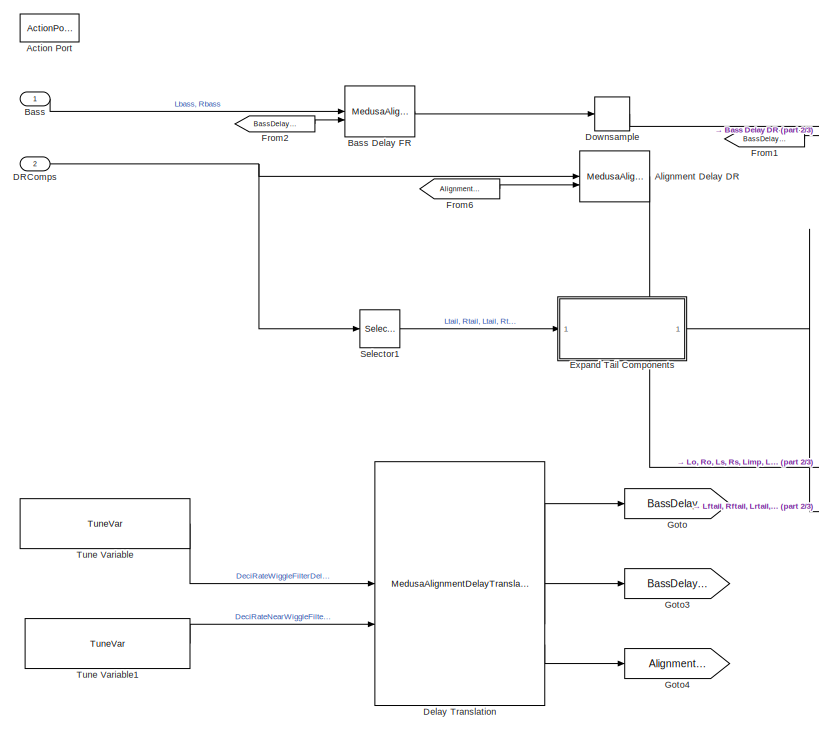
[diagram: Medusa5H1 Stereo/Medusa5H1 Part 3/On - part 1/3, top left region]
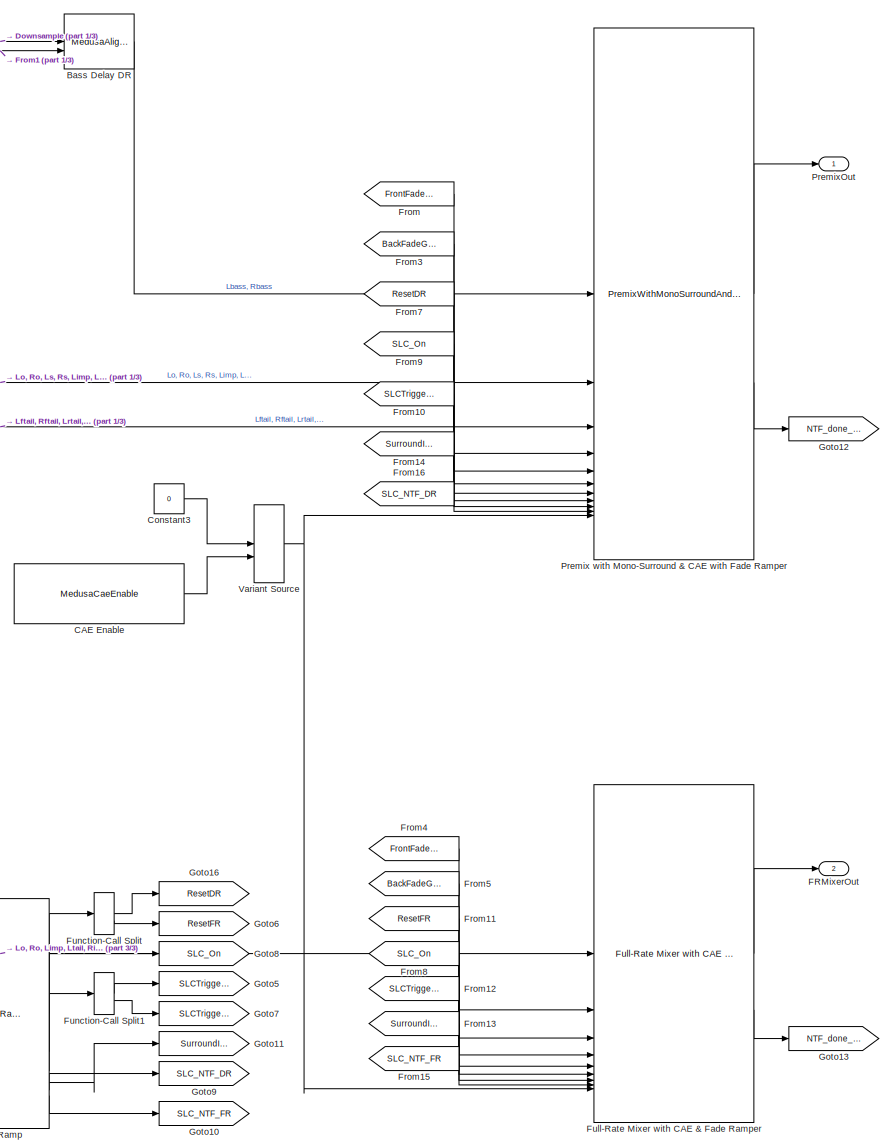
[diagram: Medusa5H1 Stereo/Medusa5H1 Part 3/On - part 2/3, right side, full height]
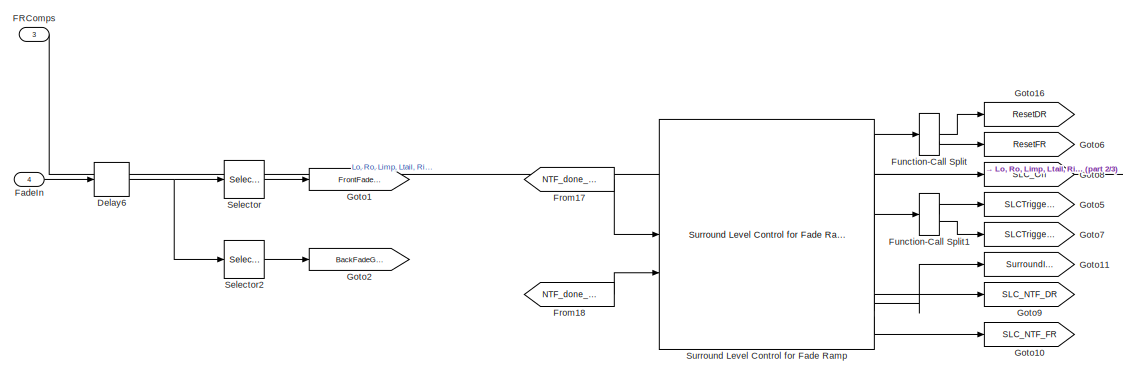
[diagram: Medusa5H1 Stereo/Medusa5H1 Part 3/On - part 3/3, bottom left region]
BLOCK [SubSystem] Medusa5H1 Stereo/Medusa5H1 Part 3/On
BLOCK [ActionPort] Medusa5H1 Stereo/Medusa5H1 Part 3/On/Action Port
BLOCK [Reference] Medusa5H1 Stereo/Medusa5H1 Part 3/On/Alignment Delay DR  REF=MedusaDelays/MedusaAlignmentDelay
  SourceBlock = MedusaDelays/MedusaAlignmentDelay
  SourceType = Fixed Alignment Delay
BLOCK [Inport] Medusa5H1 Stereo/Medusa5H1 Part 3/On/Bass
  OutDataTypeStr = single
BLOCK [Reference] Medusa5H1 Stereo/Medusa5H1 Part 3/On/Bass Delay DR  REF=MedusaDelays/MedusaAlignmentDelay
  SourceBlock = MedusaDelays/MedusaAlignmentDelay
  SourceType = Fixed Alignment Delay
BLOCK [Reference] Medusa5H1 Stereo/Medusa5H1 Part 3/On/Bass Delay FR  REF=MedusaDelays/MedusaAlignmentDelay
  SourceBlock = MedusaDelays/MedusaAlignmentDelay
  SourceType = Fixed Alignment Delay
BLOCK [Reference] Medusa5H1 Stereo/Medusa5H1 Part 3/On/CAE Enable  REF=MedusaCaeEnable/MedusaCaeEnable
  SourceBlock = MedusaCaeEnable/MedusaCaeEnable
BLOCK [Constant] Medusa5H1 Stereo/Medusa5H1 Part 3/On/Constant3
  OutDataTypeStr = int32
  SampleTime = -1
  Value = 0
BLOCK [Inport] Medusa5H1 Stereo/Medusa5H1 Part 3/On/DRComps
  OutDataTypeStr = single
  Port = 2
BLOCK [Reference] Medusa5H1 Stereo/Medusa5H1 Part 3/On/Delay Translation  REF=MedusaDelays/MedusaAlignmentDelayTranslation
  SourceBlock = MedusaDelays/MedusaAlignmentDelayTranslation
  SourceType = Alignment Delay Translation
BLOCK [Delay] Medusa5H1 Stereo/Medusa5H1 Part 3/On/Delay6
  DelayLength = 1
  InputPortMap = u0
BLOCK [DownSample] Medusa5H1 Stereo/Medusa5H1 Part 3/On/Downsample
  N = 4
BLOCK [SubSystem] Medusa5H1 Stereo/Medusa5H1 Part 3/On/Expand Tail Components
  FunctionWithSeparateData = on
  RTWFileName = MedusaExpandTailComps
  RTWFileNameOpts = User specified
  RTWSystemCode = Nonreusable function
  TreatAsAtomicUnit = on
BLOCK [Constant] Medusa5H1 Stereo/Medusa5H1 Part 3/On/Expand Tail Components/Constant
  OutDataTypeStr = single
  SampleTime = -1
  Value = [0 1 2 3]
BLOCK [From] Medusa5H1 Stereo/Medusa5H1 Part 3/On/Expand Tail Components/From6
  GotoTag = wiggleFilter
BLOCK [Goto] Medusa5H1 Stereo/Medusa5H1 Part 3/On/Expand Tail Components/Goto10
  GotoTag = wiggleFilter
BLOCK [Reference] Medusa5H1 Stereo/Medusa5H1 Part 3/On/Expand Tail Components/Tail Component EQ  REF=PooliirLib/PooliirwithNonTrivialTranslations
  SourceBlock = PooliirLib/PooliirwithNonTrivialTranslations
  SourceType = Bose Pool IIR
BLOCK [Inport] Medusa5H1 Stereo/Medusa5H1 Part 3/On/Expand Tail Components/Tail Comps
BLOCK [Reference] Medusa5H1 Stereo/Medusa5H1 Part 3/On/Expand Tail Components/TuneTOP  REF=TuneVar/TuneTOP
  SourceBlock = TuneVar/TuneTOP
  SourceProductName = Bose Talaria
  SourceType = Talaria Trivial Tune TOP
BLOCK [Outport] Medusa5H1 Stereo/Medusa5H1 Part 3/On/Expand Tail Components/Wiggle Comps
  VectorParamsAs1DForOutWhenUnconnected = off
BLOCK [Reference] Medusa5H1 Stereo/Medusa5H1 Part 3/On/Expand Tail Components/Wiggle Filters  REF=FirEven/FirEven
  SourceBlock = FirEven/FirEven
  SourceProductName = Bose Blocklib
BLOCK [Inport] Medusa5H1 Stereo/Medusa5H1 Part 3/On/FRComps
  OutDataTypeStr = single
  Port = 3
BLOCK [Outport] Medusa5H1 Stereo/Medusa5H1 Part 3/On/FRMixerOut
  Port = 2
  VectorParamsAs1DForOutWhenUnconnected = off
BLOCK [Inport] Medusa5H1 Stereo/Medusa5H1 Part 3/On/FadeIn
  OutDataTypeStr = single
  Port = 4
BLOCK [From] Medusa5H1 Stereo/Medusa5H1 Part 3/On/From
  GotoTag = FrontFadeGain
BLOCK [From] Medusa5H1 Stereo/Medusa5H1 Part 3/On/From1
  GotoTag = BassDelayDec
BLOCK [From] Medusa5H1 Stereo/Medusa5H1 Part 3/On/From10
  GotoTag = SLCTriggerDR
BLOCK [From] Medusa5H1 Stereo/Medusa5H1 Part 3/On/From11
  GotoTag = ResetFR
BLOCK [From] Medusa5H1 Stereo/Medusa5H1 Part 3/On/From12
  GotoTag = SLCTriggerFR
BLOCK [From] Medusa5H1 Stereo/Medusa5H1 Part 3/On/From13
  GotoTag = SurroundInfo
BLOCK [From] Medusa5H1 Stereo/Medusa5H1 Part 3/On/From14
  GotoTag = SurroundInfo
BLOCK [From] Medusa5H1 Stereo/Medusa5H1 Part 3/On/From15
  GotoTag = SLC_NTF_FR
BLOCK [From] Medusa5H1 Stereo/Medusa5H1 Part 3/On/From16
  GotoTag = SLC_NTF_DR
BLOCK [From] Medusa5H1 Stereo/Medusa5H1 Part 3/On/From17
  GotoTag = NTF_done_DR
BLOCK [From] Medusa5H1 Stereo/Medusa5H1 Part 3/On/From18
  GotoTag = NTF_done_FR
BLOCK [From] Medusa5H1 Stereo/Medusa5H1 Part 3/On/From2
  GotoTag = BassDelayFull
BLOCK [From] Medusa5H1 Stereo/Medusa5H1 Part 3/On/From3
  GotoTag = BackFadeGain
BLOCK [From] Medusa5H1 Stereo/Medusa5H1 Part 3/On/From4
  GotoTag = FrontFadeGain
BLOCK [From] Medusa5H1 Stereo/Medusa5H1 Part 3/On/From5
  GotoTag = BackFadeGain
BLOCK [From] Medusa5H1 Stereo/Medusa5H1 Part 3/On/From6
  GotoTag = AlignmentDelay
BLOCK [From] Medusa5H1 Stereo/Medusa5H1 Part 3/On/From7
  GotoTag = ResetDR
BLOCK [From] Medusa5H1 Stereo/Medusa5H1 Part 3/On/From8
  GotoTag = SLC_On
BLOCK [From] Medusa5H1 Stereo/Medusa5H1 Part 3/On/From9
  GotoTag = SLC_On
BLOCK [Reference] Medusa5H1 Stereo/Medusa5H1 Part 3/On/Full-Rate Mixer with CAE & Fade Ramper  REF=MedusaFullRateMixer/Full-Rate Mixer with CAE & Fade Ramper
  SourceBlock = MedusaFullRateMixer/Full-Rate Mixer with CAE & Fade Ramper
BLOCK [FunctionCallSplit] Medusa5H1 Stereo/Medusa5H1 Part 3/On/Function-Call Split
  IconShape = distinctive
  NumOutputPorts = 2
  OutputPortLayout = default
BLOCK [FunctionCallSplit] Medusa5H1 Stereo/Medusa5H1 Part 3/On/Function-Call Split1
  IconShape = distinctive
  NumOutputPorts = 2
  OutputPortLayout = default
BLOCK [Goto] Medusa5H1 Stereo/Medusa5H1 Part 3/On/Goto
  GotoTag = BassDelayDec
BLOCK [Goto] Medusa5H1 Stereo/Medusa5H1 Part 3/On/Goto1
  GotoTag = FrontFadeGain
BLOCK [Goto] Medusa5H1 Stereo/Medusa5H1 Part 3/On/Goto10
  GotoTag = SLC_NTF_FR
BLOCK [Goto] Medusa5H1 Stereo/Medusa5H1 Part 3/On/Goto11
  GotoTag = SurroundInfo
BLOCK [Goto] Medusa5H1 Stereo/Medusa5H1 Part 3/On/Goto12
  GotoTag = NTF_done_DR
BLOCK [Goto] Medusa5H1 Stereo/Medusa5H1 Part 3/On/Goto13
  GotoTag = NTF_done_FR
BLOCK [Goto] Medusa5H1 Stereo/Medusa5H1 Part 3/On/Goto16
  GotoTag = ResetDR
BLOCK [Goto] Medusa5H1 Stereo/Medusa5H1 Part 3/On/Goto2
  GotoTag = BackFadeGain
BLOCK [Goto] Medusa5H1 Stereo/Medusa5H1 Part 3/On/Goto3
  GotoTag = BassDelayFull
BLOCK [Goto] Medusa5H1 Stereo/Medusa5H1 Part 3/On/Goto4
  GotoTag = AlignmentDelay
BLOCK [Goto] Medusa5H1 Stereo/Medusa5H1 Part 3/On/Goto5
  GotoTag = SLCTriggerDR
BLOCK [Goto] Medusa5H1 Stereo/Medusa5H1 Part 3/On/Goto6
  GotoTag = ResetFR
BLOCK [Goto] Medusa5H1 Stereo/Medusa5H1 Part 3/On/Goto7
  GotoTag = SLCTriggerFR
BLOCK [Goto] Medusa5H1 Stereo/Medusa5H1 Part 3/On/Goto8
  GotoTag = SLC_On
BLOCK [Goto] Medusa5H1 Stereo/Medusa5H1 Part 3/On/Goto9
  GotoTag = SLC_NTF_DR
BLOCK [Reference] Medusa5H1 Stereo/Medusa5H1 Part 3/On/Premix with Mono-Surround & CAE with Fade Ramper  REF=MedusaPremix/PremixWithMonoSurroundAndCaeWithFadeRamper
  SourceBlock = MedusaPremix/PremixWithMonoSurroundAndCaeWithFadeRamper
  SourceType = Medusa Premix 5H
BLOCK [Outport] Medusa5H1 Stereo/Medusa5H1 Part 3/On/PremixOut
  VectorParamsAs1DForOutWhenUnconnected = off
BLOCK [Selector] Medusa5H1 Stereo/Medusa5H1 Part 3/On/Selector
  IndexOptions = Index vector (dialog),Index vector (dialog)
  Indices = 1,1
  InputPortWidth = 2
  NumberOfDimensions = 2
  OutputSizes = 1,1
BLOCK [Selector] Medusa5H1 Stereo/Medusa5H1 Part 3/On/Selector1
  IndexOptions = Select all,Index vector (dialog)
  Indices = [1 3],[6 8 6 8]
  InputPortWidth = 3
  NumberOfDimensions = 2
  OutputSizes = 1,1
BLOCK [Selector] Medusa5H1 Stereo/Medusa5H1 Part 3/On/Selector2
  IndexOptions = Index vector (dialog),Index vector (dialog)
  Indices = 1,2
  InputPortWidth = 2
  NumberOfDimensions = 2
  OutputSizes = 1,1
BLOCK [Reference] Medusa5H1 Stereo/Medusa5H1 Part 3/On/Surround Level Control for Fade Ramp  REF=MedusaSurroundLevelControl/Surround Level Control for Fade Ramp
  SourceBlock = MedusaSurroundLevelControl/Surround Level Control for Fade Ramp
BLOCK [Reference] Medusa5H1 Stereo/Medusa5H1 Part 3/On/Tune Variable  REF=TuneVar/TuneVar
  SourceBlock = TuneVar/TuneVar
  SourceProductName = Bose Talaria
  SourceType = Talaria Tune Variable
BLOCK [Reference] Medusa5H1 Stereo/Medusa5H1 Part 3/On/Tune Variable1  REF=TuneVar/TuneVar
  SourceBlock = TuneVar/TuneVar
  SourceProductName = Bose Talaria
  SourceType = Talaria Tune Variable
BLOCK [VariantSource] Medusa5H1 Stereo/Medusa5H1 Part 3/On/Variant Source
BLOCK [Outport] Medusa5H1 Stereo/Medusa5H1 Part 3/OverheadPremixOut
  Port = 2
  VectorParamsAs1DForOutWhenUnconnected = off
BLOCK [Reference] Medusa5H1 Stereo/Medusa5H1 Part 3/Partition  REF=FeaturePath/Partition
  SourceBlock = FeaturePath/Partition
  SourceProductName = Bose Talaria
  SourceType = Talaria Partition
BLOCK [Outport] Medusa5H1 Stereo/Medusa5H1 Part 3/PeripheralPremixOut
  VectorParamsAs1DForOutWhenUnconnected = off
BLOCK [Reference] Medusa5H1 Stereo/Medusa5H1 Part 3/RTC  REF=RTC/RTC
  SourceBlock = RTC/RTC
  SourceProductName = Bose Talaria
  SourceType = Talaria RTC Receive
BLOCK [Selector] Medusa5H1 Stereo/Medusa5H1 Part 3/Selector2
  IndexOptions = Select all,Index vector (dialog)
  Indices = [1 3],config.PeripheralIdx
  InputPortWidth = 3
  NumberOfDimensions = 2
  OutputSizes = 1,1
BLOCK [Selector] Medusa5H1 Stereo/Medusa5H1 Part 3/Selector3
  IndexOptions = Select all,Index vector (dialog)
  Indices = [1 3],config.OverheadIdx
  InputPortWidth = 3
  NumberOfDimensions = 2
  OutputSizes = 1,1
BLOCK [Selector] Medusa5H1 Stereo/Medusa5H1 Part 3/Selector4
  IndexOptions = Select all,Index vector (dialog)
  Indices = [1 3],config.FRMOutputIdx
  InputPortWidth = 3
  NumberOfDimensions = 2
  OutputSizes = 1,1
BLOCK [SubSystem] Medusa5H1 Stereo/Medusa5H1 Part 4
  FunctionWithSeparateData = on
  RTWSystemCode = Nonreusable function
  TreatAsAtomicUnit = on
BLOCK [SubSystem] Medusa5H1 Stereo/Medusa5H1 Part 4/Bypass
BLOCK [ActionPort] Medusa5H1 Stereo/Medusa5H1 Part 4/Bypass/Action Port
BLOCK [Constant] Medusa5H1 Stereo/Medusa5H1 Part 4/Bypass/Constant
  OutDataTypeStr = single
  Value = MedusaConfig.outputDefault
BLOCK [Outport] Medusa5H1 Stereo/Medusa5H1 Part 4/Bypass/IsStereo
  VectorParamsAs1DForOutWhenUnconnected = off
BLOCK [DataStoreMemory] Medusa5H1 Stereo/Medusa5H1 Part 4/Data Store Memory
  DataStoreName = MedusaHoligramEnable
  InitialValue = 1
  OutDataTypeStr = uint32
  ReadBeforeWriteMsg = warning
  ShowAdditionalParam = off
  WriteAfterReadMsg = warning
  WriteAfterWriteMsg = warning
BLOCK [DataStoreRead] Medusa5H1 Stereo/Medusa5H1 Part 4/Enable State Read
  DataStoreName = MedusaHoligramEnable
  IndexOptions = Index vector (dialog)
  Indices = 1
  OutputSizes = 1
BLOCK [SubSystem] Medusa5H1 Stereo/Medusa5H1 Part 4/Enable State Write
BLOCK [Constant] Medusa5H1 Stereo/Medusa5H1 Part 4/Enable State Write/Constant
  OutDataTypeStr = uint32
  Value = 0
BLOCK [DataStoreWrite] Medusa5H1 Stereo/Medusa5H1 Part 4/Enable State Write/Data Store Write
  DataStoreName = MedusaHoligramEnable
  IndexOptions = Index vector (dialog)
  Indices = 1
  OutputSizes = 1
BLOCK [TriggerPort] Medusa5H1 Stereo/Medusa5H1 Part 4/Enable State Write/Trigger
  PortDimensions = 1
  StatesWhenEnabling = held
  TriggerType = function-call
  VariantControl = Variant
BLOCK [Inport] Medusa5H1 Stereo/Medusa5H1 Part 4/FRSpkrs
  Port = 3
BLOCK [From] Medusa5H1 Stereo/Medusa5H1 Part 4/From1
  GotoTag = Bypass
BLOCK [From] Medusa5H1 Stereo/Medusa5H1 Part 4/From2
  GotoTag = On
BLOCK [Goto] Medusa5H1 Stereo/Medusa5H1 Part 4/Goto2
  GotoTag = On
BLOCK [Goto] Medusa5H1 Stereo/Medusa5H1 Part 4/Goto3
  GotoTag = Bypass
BLOCK [If] Medusa5H1 Stereo/Medusa5H1 Part 4/If
BLOCK [Merge] Medusa5H1 Stereo/Medusa5H1 Part 4/Merge
  InitialOutput = MedusaConfig.outputDefault
BLOCK [SubSystem] Medusa5H1 Stereo/Medusa5H1 Part 4/On
BLOCK [ActionPort] Medusa5H1 Stereo/Medusa5H1 Part 4/On/Action Port
BLOCK [Sum] Medusa5H1 Stereo/Medusa5H1 Part 4/On/Add
  IconShape = rectangular
BLOCK [Outport] Medusa5H1 Stereo/Medusa5H1 Part 4/On/AudioOut
  VectorParamsAs1DForOutWhenUnconnected = off
BLOCK [Reference] Medusa5H1 Stereo/Medusa5H1 Part 4/On/DR Mix Matrix with Hybrid Holigram EQ  REF=MedusaDrHoligramEq/MedusaDrHoligramEq
  SourceBlock = MedusaDrHoligramEq/MedusaDrHoligramEq
BLOCK [Reference] Medusa5H1 Stereo/Medusa5H1 Part 4/On/FR Holigram Delay  REF=MedusaDelays/MedusaTunableDelay
  SourceBlock = MedusaDelays/MedusaTunableDelay
  SourceType = Tunable Delay
BLOCK [Reference] Medusa5H1 Stereo/Medusa5H1 Part 4/On/FR IIR Holigram EQ  REF=MedusaFRHoligramEQ/FR Holigram EQ
  SourceBlock = MedusaFRHoligramEQ/FR Holigram EQ
BLOCK [Inport] Medusa5H1 Stereo/Medusa5H1 Part 4/On/FRMixerOut
  OutDataTypeStr = single
  Port = 3
BLOCK [From] Medusa5H1 Stereo/Medusa5H1 Part 4/On/From8
  GotoTag = MedusaTunableDelay
BLOCK [From] Medusa5H1 Stereo/Medusa5H1 Part 4/On/From9
  GotoTag = FRTunableDelay
BLOCK [Reference] Medusa5H1 Stereo/Medusa5H1 Part 4/On/Full-Rate EQ Delay Translation  REF=MedusaDelays/MedusaFullRateHoligramDelayTranslation
  SourceBlock = MedusaDelays/MedusaFullRateHoligramDelayTranslation
  SourceType = Tunable Delay Translation
BLOCK [Goto] Medusa5H1 Stereo/Medusa5H1 Part 4/On/Goto6
  GotoTag = MedusaTunableDelay
BLOCK [Goto] Medusa5H1 Stereo/Medusa5H1 Part 4/On/Goto7
  GotoTag = FRTunableDelay
BLOCK [Concatenate] Medusa5H1 Stereo/Medusa5H1 Part 4/On/Matrix Concatenate
  ConcatenateDimension = 2
  Mode = Multidimensional array
BLOCK [Reference] Medusa5H1 Stereo/Medusa5H1 Part 4/On/Medusa Output Delay  REF=MedusaDelays/MedusaTunableDelay
  SourceBlock = MedusaDelays/MedusaTunableDelay
  SourceType = Tunable Delay
BLOCK [Reference] Medusa5H1 Stereo/Medusa5H1 Part 4/On/Output Delay Translation  REF=MedusaDelays/MedusaSpeakerDelayTranslation
  SourceBlock = MedusaDelays/MedusaSpeakerDelayTranslation
  SourceType = Tunable Delay Translation
BLOCK [SubSystem] Medusa5H1 Stereo/Medusa5H1 Part 4/On/Overhead Holigram EQ
  Variant = on
BLOCK [Outport] Medusa5H1 Stereo/Medusa5H1 Part 4/On/Overhead Holigram EQ/Channels Out
BLOCK [SubSystem] Medusa5H1 Stereo/Medusa5H1 Part 4/On/Overhead Holigram EQ/Disable Overhead EQ
  VariantControl = sys_defs.number_of_overhead_speaker_pairs == 0
BLOCK [Outport] Medusa5H1 Stereo/Medusa5H1 Part 4/On/Overhead Holigram EQ/Disable Overhead EQ/Channels Out
BLOCK [Constant] Medusa5H1 Stereo/Medusa5H1 Part 4/On/Overhead Holigram EQ/Disable Overhead EQ/Constant
  OutDataTypeStr = single
  Value = Config.DefaultOverheadHoligramEqOutput
BLOCK [Inport] Medusa5H1 Stereo/Medusa5H1 Part 4/On/Overhead Holigram EQ/Disable Overhead EQ/OH Comp In
BLOCK [Terminator] Medusa5H1 Stereo/Medusa5H1 Part 4/On/Overhead Holigram EQ/Disable Overhead EQ/Terminator
BLOCK [SubSystem] Medusa5H1 Stereo/Medusa5H1 Part 4/On/Overhead Holigram EQ/Enable Overhead EQ
  VariantControl = sys_defs.number_of_overhead_speaker_pairs ~= 0
BLOCK [Outport] Medusa5H1 Stereo/Medusa5H1 Part 4/On/Overhead Holigram EQ/Enable Overhead EQ/Channels Out
BLOCK [Reference] Medusa5H1 Stereo/Medusa5H1 Part 4/On/Overhead Holigram EQ/Enable Overhead EQ/DR Mix Matrix with Hybrid Holigram EQ  REF=MedusaDrHoligramEq/MedusaDrHoligramEq
  SourceBlock = MedusaDrHoligramEq/MedusaDrHoligramEq
BLOCK [Reference] Medusa5H1 Stereo/Medusa5H1 Part 4/On/Overhead Holigram EQ/Enable Overhead EQ/FeaturePath  REF=FeaturePath/FeaturePath
  SourceBlock = FeaturePath/FeaturePath
  SourceProductName = Bose Talaria
  SourceType = Talaria Feature Path
BLOCK [Inport] Medusa5H1 Stereo/Medusa5H1 Part 4/On/Overhead Holigram EQ/Enable Overhead EQ/OH Comp In
BLOCK [Inport] Medusa5H1 Stereo/Medusa5H1 Part 4/On/Overhead Holigram EQ/OH Comp In
BLOCK [Inport] Medusa5H1 Stereo/Medusa5H1 Part 4/On/OverheadPremixOut
  OutDataTypeStr = single
  Port = 2
BLOCK [Inport] Medusa5H1 Stereo/Medusa5H1 Part 4/On/PeripheralPremixOut
  OutDataTypeStr = single
BLOCK [Reference] Medusa5H1 Stereo/Medusa5H1 Part 4/On/Reconstruction Filter  REF=dspmlti4/FIR
Interpolation
  SourceBlock = dspmlti4/FIR\nInterpolation
  SourceType = FIR Interpolation
  UserDataPersistent = on
BLOCK [SubSystem] Medusa5H1 Stereo/Medusa5H1 Part 4/On/Router
  ErrorFcn = Stateflow.Translate.translate
  PermitHierarchicalResolution = ExplicitOnly
  SFBlockType = MATLAB Function
  TreatAsAtomicUnit = on
BLOCK [Demux] Medusa5H1 Stereo/Medusa5H1 Part 4/On/Router/ Demux 
  Outputs = 1
BLOCK [S-Function] Medusa5H1 Stereo/Medusa5H1 Part 4/On/Router/ SFunction 
  EnableBusSupport = off
  FunctionName = sf_sfun
  PortCounts = [2 2]
  SFcnIsStateOwnerBlock = off
  SFunctionDeploymentMode = off
  Tag = Stateflow S-Function 41
BLOCK [Terminator] Medusa5H1 Stereo/Medusa5H1 Part 4/On/Router/ Terminator 
BLOCK [Inport] Medusa5H1 Stereo/Medusa5H1 Part 4/On/Router/routingMap
  Port = 2
BLOCK [Inport] Medusa5H1 Stereo/Medusa5H1 Part 4/On/Router/u
BLOCK [Outport] Medusa5H1 Stereo/Medusa5H1 Part 4/On/Router/y
  VectorParamsAs1DForOutWhenUnconnected = off
BLOCK [Selector] Medusa5H1 Stereo/Medusa5H1 Part 4/On/Selector
  IndexOptions = Select all,Index vector (dialog)
  Indices = [1 3],1:config.numMedusaOut
  InputPortWidth = 3
  NumberOfDimensions = 2
  OutputSizes = 1,1
BLOCK [Reference] Medusa5H1 Stereo/Medusa5H1 Part 4/On/TOP  REF=TOP/TOP
  SourceBlock = TOP/TOP
  SourceProductName = Bose Talaria
  SourceType = Talaria Target Overlay Parameter
BLOCK [Reference] Medusa5H1 Stereo/Medusa5H1 Part 4/On/TOP1  REF=TOP/TOP
  SourceBlock = TOP/TOP
  SourceProductName = Bose Talaria
  SourceType = Talaria Target Overlay Parameter
BLOCK [Reference] Medusa5H1 Stereo/Medusa5H1 Part 4/On/Tune Variable2  REF=TuneVar/TuneVar
  SourceBlock = TuneVar/TuneVar
  SourceProductName = Bose Talaria
  SourceType = Talaria Tune Variable
BLOCK [Reference] Medusa5H1 Stereo/Medusa5H1 Part 4/On/Tune Variable3  REF=TuneVar/TuneVar
  SourceBlock = TuneVar/TuneVar
  SourceProductName = Bose Talaria
  SourceType = Talaria Tune Variable
BLOCK [Reference] Medusa5H1 Stereo/Medusa5H1 Part 4/On/TuneTOP1  REF=TuneVar/TuneTOP
  SourceBlock = TuneVar/TuneTOP
  SourceProductName = Bose Talaria
  SourceType = Talaria Trivial Tune TOP
BLOCK [Outport] Medusa5H1 Stereo/Medusa5H1 Part 4/Out
  VectorParamsAs1DForOutWhenUnconnected = off
BLOCK [Inport] Medusa5H1 Stereo/Medusa5H1 Part 4/OverheadPremixComps
  Port = 2
BLOCK [Reference] Medusa5H1 Stereo/Medusa5H1 Part 4/Partition  REF=FeaturePath/Partition
  SourceBlock = FeaturePath/Partition
  SourceProductName = Bose Talaria
  SourceType = Talaria Partition
BLOCK [Inport] Medusa5H1 Stereo/Medusa5H1 Part 4/PeripheralPremixComps
BLOCK [Reference] Medusa5H1 Stereo/Medusa5H1 Part 4/RTC  REF=RTC/RTC
  SourceBlock = RTC/RTC
  SourceProductName = Bose Talaria
  SourceType = Talaria RTC Receive
BLOCK [SubSystem] MedusaPostHoligram
  FunctionWithSeparateData = on
  RTWFcnNameOpts = Use subsystem name
  RTWFileNameOpts = Use subsystem name
  RTWSystemCode = Nonreusable function
  TreatAsAtomicUnit = on
BLOCK [Outport] MedusaPostHoligram/AudioOut
  VectorParamsAs1DForOutWhenUnconnected = off
BLOCK [SubSystem] MedusaPostHoligram/Bypass
BLOCK [ActionPort] MedusaPostHoligram/Bypass/Action Port
BLOCK [Constant] MedusaPostHoligram/Bypass/Constant
  OutDataTypeStr = single
  Value = MedusaConfig.outputDefault
BLOCK [Outport] MedusaPostHoligram/Bypass/IsStereo
  VectorParamsAs1DForOutWhenUnconnected = off
BLOCK [DataStoreMemory] MedusaPostHoligram/Data Store Memory
  DataStoreName = MedusaPostHoligramEnable
  InitialValue = 1
  OutDataTypeStr = uint32
  ReadBeforeWriteMsg = warning
  ShowAdditionalParam = off
  WriteAfterReadMsg = warning
  WriteAfterWriteMsg = warning
BLOCK [DataStoreRead] MedusaPostHoligram/Enable State Read
  DataStoreName = MedusaPostHoligramEnable
  IndexOptions = Index vector (dialog)
  Indices = 1
  OutputSizes = 1
BLOCK [SubSystem] MedusaPostHoligram/Enable State Write
BLOCK [Constant] MedusaPostHoligram/Enable State Write/Constant
  OutDataTypeStr = uint32
  Value = 0
BLOCK [DataStoreWrite] MedusaPostHoligram/Enable State Write/Data Store Write
  DataStoreName = MedusaPostHoligramEnable
  IndexOptions = Index vector (dialog)
  Indices = 1
  OutputSizes = 1
BLOCK [TriggerPort] MedusaPostHoligram/Enable State Write/Trigger
  PortDimensions = 1
  StatesWhenEnabling = held
  TriggerType = function-call
  VariantControl = Variant
BLOCK [Inport] MedusaPostHoligram/FRIn
  Port = 3
BLOCK [Reference] MedusaPostHoligram/FeaturePath  REF=FeaturePath/FeaturePath
  SourceBlock = FeaturePath/FeaturePath
  SourceProductName = Bose Talaria
  SourceType = Talaria Feature Path
BLOCK [From] MedusaPostHoligram/From1
  GotoTag = Bypass
BLOCK [From] MedusaPostHoligram/From2
  GotoTag = On
BLOCK [Goto] MedusaPostHoligram/Goto2
  GotoTag = On
BLOCK [Goto] MedusaPostHoligram/Goto3
  GotoTag = Bypass
BLOCK [Inport] MedusaPostHoligram/HeadrestDRIn
BLOCK [If] MedusaPostHoligram/If
BLOCK [Concatenate] MedusaPostHoligram/Matrix Concatenate
  ConcatenateDimension = 2
  Mode = Multidimensional array
BLOCK [Merge] MedusaPostHoligram/Merge
  InitialOutput = MedusaConfig.outputDefault
BLOCK [Inport] MedusaPostHoligram/NonHeadrestDRIn
  Port = 2
BLOCK [SubSystem] MedusaPostHoligram/On
BLOCK [ActionPort] MedusaPostHoligram/On/Action Port
BLOCK [Sum] MedusaPostHoligram/On/Add
  IconShape = rectangular
BLOCK [Outport] MedusaPostHoligram/On/AudioOut
  VectorParamsAs1DForOutWhenUnconnected = off
BLOCK [Constant] MedusaPostHoligram/On/Constant
  Value = config.BandSplitConfig.PostHoligramFirUp.CoeffsTarget
BLOCK [Inport] MedusaPostHoligram/On/DRIn
  OutDataTypeStr = single
BLOCK [Inport] MedusaPostHoligram/On/FRIn
  OutDataTypeStr = single
  Port = 2
BLOCK [Reference] MedusaPostHoligram/On/MedusaFirUp  REF=FirUp/FirUp
  SourceBlock = FirUp/FirUp
  SourceProductName = Bose Blocklib
  SourceType = Blocklib FirUp
BLOCK [SubSystem] MedusaPostHoligram/On/Router
  ErrorFcn = Stateflow.Translate.translate
  PermitHierarchicalResolution = ExplicitOnly
  SFBlockType = MATLAB Function
  TreatAsAtomicUnit = on
BLOCK [Demux] MedusaPostHoligram/On/Router/ Demux 
  Outputs = 1
BLOCK [S-Function] MedusaPostHoligram/On/Router/ SFunction 
  EnableBusSupport = off
  FunctionName = sf_sfun
  PortCounts = [2 2]
  SFcnIsStateOwnerBlock = off
  SFunctionDeploymentMode = off
  Tag = Stateflow S-Function 2
BLOCK [Terminator] MedusaPostHoligram/On/Router/ Terminator 
BLOCK [Inport] MedusaPostHoligram/On/Router/routingMap
  Port = 2
BLOCK [Inport] MedusaPostHoligram/On/Router/u
BLOCK [Outport] MedusaPostHoligram/On/Router/y
  VectorParamsAs1DForOutWhenUnconnected = off
BLOCK [Reference] MedusaPostHoligram/On/TuneTOP1  REF=TuneVar/TuneTOP
  SourceBlock = TuneVar/TuneTOP
  SourceProductName = Bose Talaria
  SourceType = Talaria Trivial Tune TOP
BLOCK [Reference] MedusaPostHoligram/RTC  REF=RTC/RTC
  SourceBlock = RTC/RTC
  SourceProductName = Bose Talaria
  SourceType = Talaria RTC Receive
ANNOTATION (root): In the presence of NEAR, BandSplitOut should be connected to NEAR wiggle filter and the output of NEAR wiggle filter should be connected to DeciRateIn port. In the absence of NEAR, hook up the BandSplitOut to DeciRateIn port.
ANNOTATION (root): Medusa5H1 Stereo with VLS
ANNOTATION Medusa + Holigram/Medusa5H1 Part 1/CAE Treble Boost: 1) Add Subsystem or Model blocks as valid variant choices. 2) You cannot connect blocks at this level. At simulation, connectivity is automatically determined, based on the active variant and port name matching.
ANNOTATION Medusa + Holigram/Medusa5H1 Part 3/PremixCompSplitter: Reorder as Non-headrest followed by Headrest speakers
ANNOTATION Medusa + Holigram/Medusa5H1 Part 3/PremixCompSplitter: Select Headrest Premix components
ANNOTATION Medusa + Holigram/Medusa5H1 Part 3/PremixCompSplitter: Select Overhead Premix components
ANNOTATION Medusa + Holigram/Medusa5H1 Part 3/PremixCompSplitter: Select Peripheral Premix components
ANNOTATION Medusa5H1 Stereo/Medusa5H1 Part 1/CAE Treble Boost: 1) Add Subsystem or Model blocks as valid variant choices. 2) You cannot connect blocks at this level. At simulation, connectivity is automatically determined, based on the active variant and port name matching.
ANNOTATION Medusa5H1 Stereo/Medusa5H1 Part 3: Select Overhead Premix components
ANNOTATION Medusa5H1 Stereo/Medusa5H1 Part 3: Select Peripheral (non-Overhead) Premix components
CHART Medusa5H1 Stereo/Medusa5H1 Part 4/On/Router states=1 transitions=1
  STATE_LABEL 'eML_blk_kernel()'
  STATE_LABEL 'SCRIPT:\nfunction y = fcn(u, routingMap)\n\n[frameSize, numIn] = size(u);\nnumOut = numel(routingMap);\ny = coder.nullcopy(single(zeros(frameSize, numOut)));\n\nfor i = 1:numOut\n    index = routingMap(i);\n    if (index < 0) || (index >= numIn)\n        y(:,i) = zeros(frameSize,1);\n    else\n        y(:,i) = u(:, index + 1); % add 1 for Matlab indexing\n    end\nend\n\n\n'
CHART MedusaPostHoligram/On/Router states=1 transitions=1
  STATE_LABEL 'eML_blk_kernel()'
  STATE_LABEL 'SCRIPT:\nfunction y = fcn(u, routingMap)\n\n[frameSize, numIn] = size(u);\nnumOut = numel(routingMap);\ny = coder.nullcopy(single(zeros(frameSize, numOut)));\n\nfor i = 1:numOut\n    index = routingMap(i);\n    if (index < 0) || (index >= numIn)\n        y(:,i) = zeros(frameSize,1);\n    else\n        y(:,i) = u(:, index + 1); % add 1 for Matlab indexing\n    end\nend\n\n\n'
CHART  states=0 transitions=0
CHART  states=0 transitions=0
